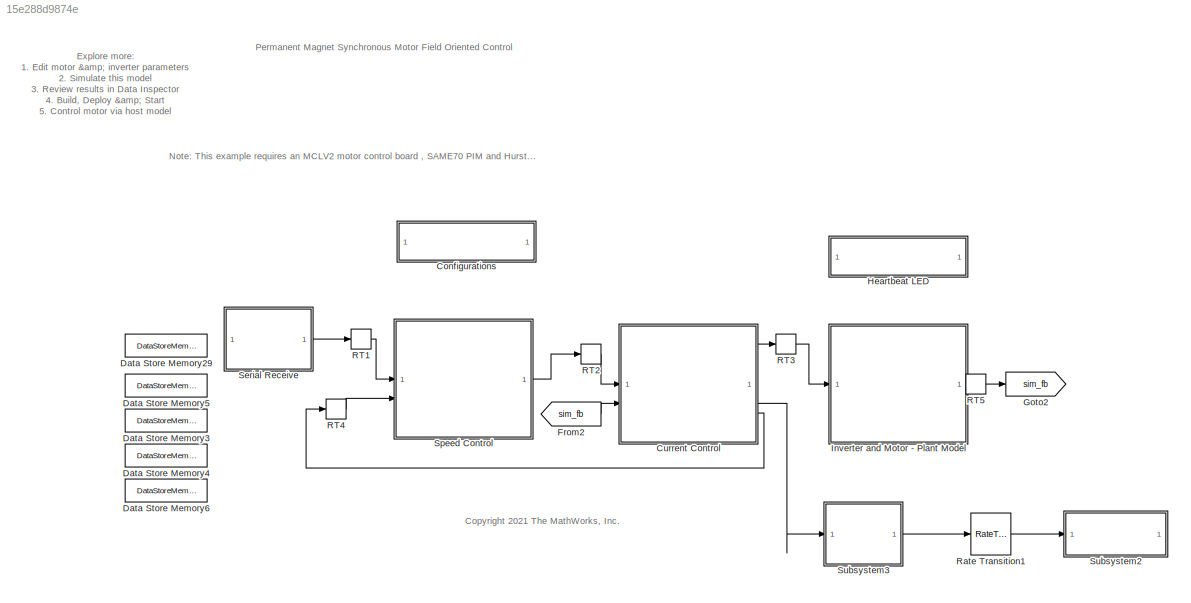
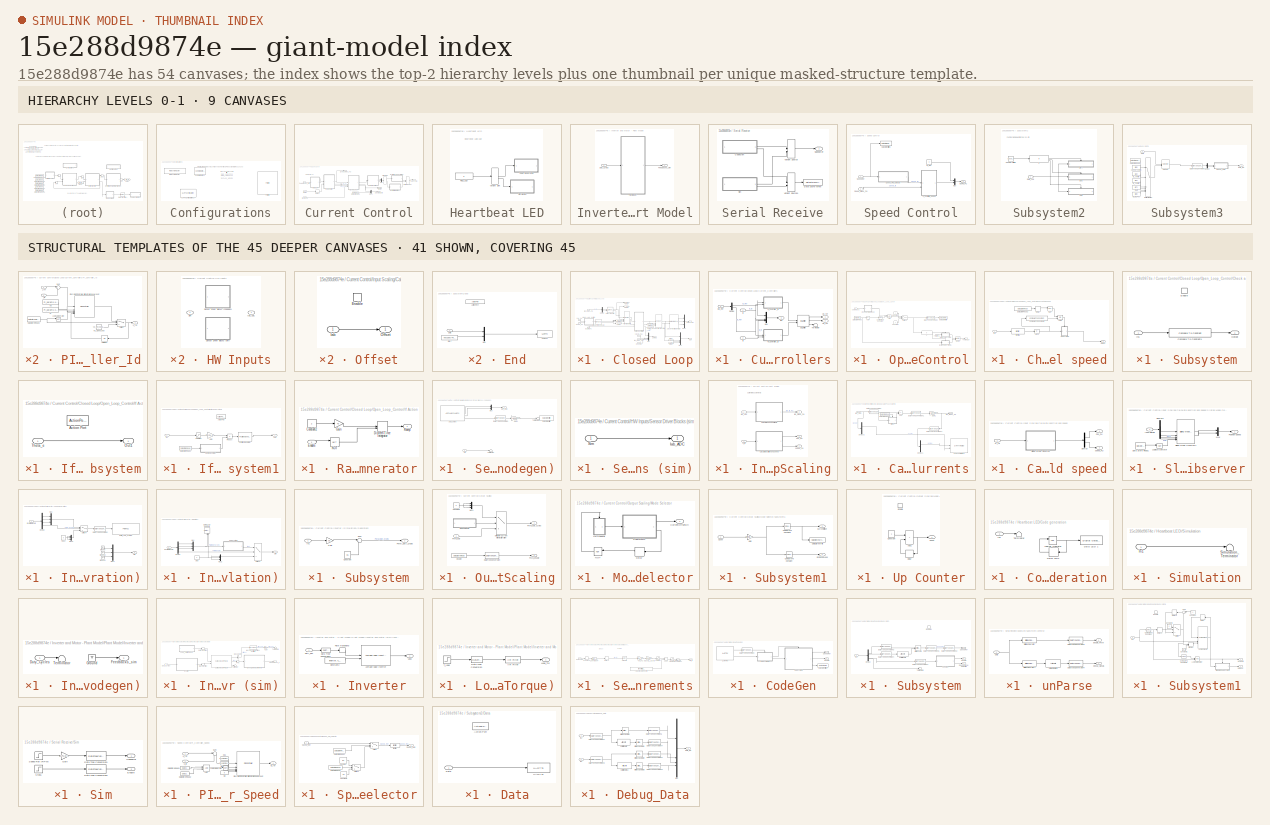
[diagram: thumbnail index - top-2 hierarchy levels (9 canvases) + 41 structural-template representatives of the remaining 45 canvases]
MODEL slx_15e288d9874e
KIND model
CONFIG AbsTol = auto
CONFIG EnableMultiTasking = on
CONFIG FixedStep = Ts
CONFIG InitFcn = mcb_microchip_pmsm_foc_sensorless_SAME54_data
CONFIG MaxStep = auto
CONFIG MinStep = auto
CONFIG RelTol = 1e-3
CONFIG SampleTimeConstraint = Unconstrained
CONFIG SolverName = FixedStepDiscrete
CONFIG StartTime = 0.0
CONFIG StopTime = 5
BLOCK [SubSystem] Configurations
BLOCK [Reference] Configurations/Compiler Options  REF=MCHP_Blockset/System Configuration/Compiler Options
  Priority = 1
  SourceBlock = MCHP_Blockset/System Configuration/Compiler Options
  SourceProductName = MPLAB Device Blocks for Simulink
BLOCK [Reference] Configurations/Microchip Master  REF=MCHP_Blockset/System Configuration/Microchip Master
  Priority = 1
  SourceBlock = MCHP_Blockset/System Configuration/Microchip Master
  SourceProductName = MPLAB Device Blocks for Simulink
BLOCK [Reference] Configurations/Port Info  REF=MCHP_Blockset/System Info/Port Info
  SourceBlock = MCHP_Blockset/System Info/Port Info
  SourceProductName = MPLAB Device Blocks for Simulink
BLOCK [Reference] Configurations/UART Configuration1  REF=MCHP_Blockset/BUS UART/UART Configuration
  SourceBlock = MCHP_Blockset/BUS UART/UART Configuration
  SourceProductName = MPLAB Device Blocks for Simulink
  SourceType = Configuration for UART peripheral
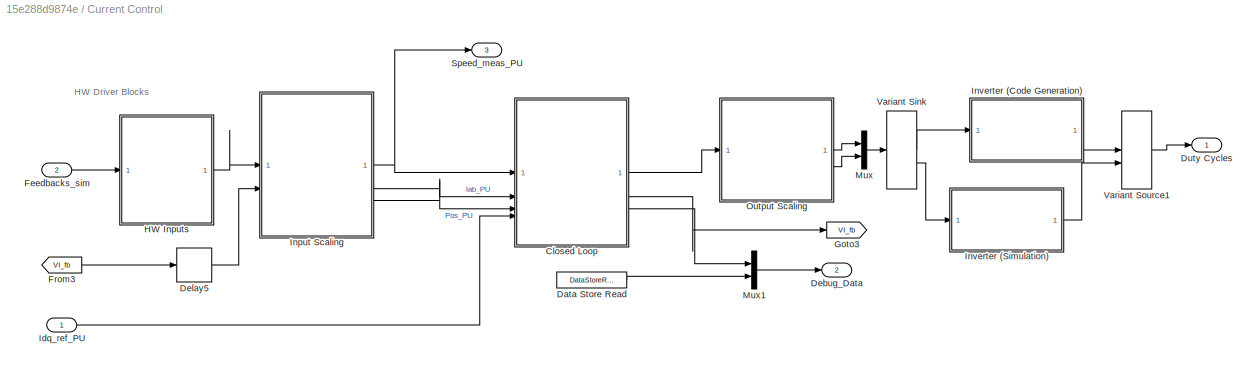
BLOCK [SubSystem] Current Control
  RTWMemSecFuncExecute = code_ramfuncs
  TreatAsAtomicUnit = on
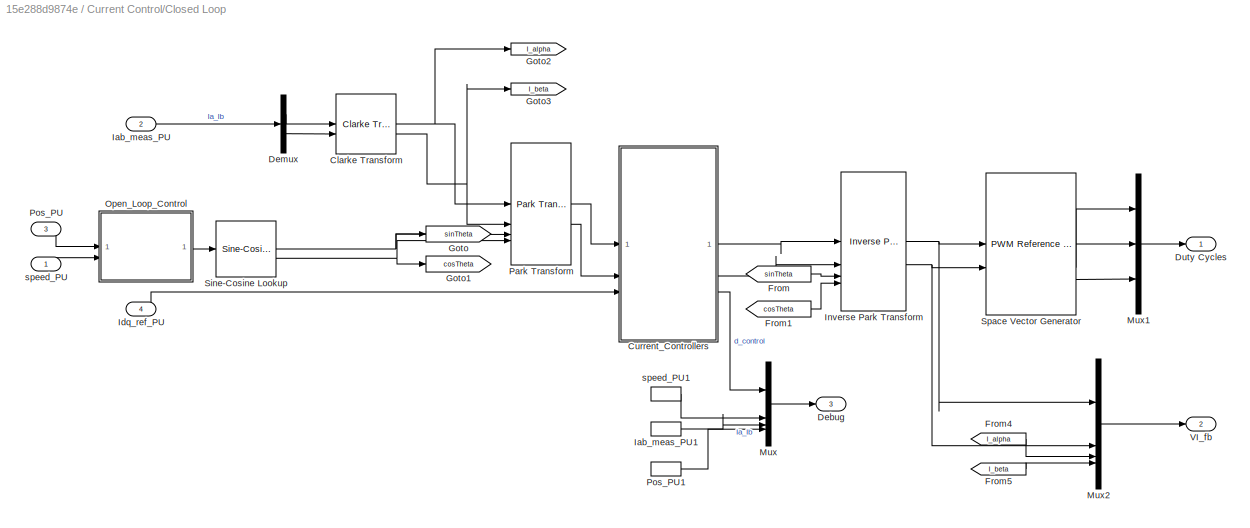
BLOCK [SubSystem] Current Control/Closed Loop
BLOCK [Reference] Current Control/Closed Loop/Clarke Transform  REF=mcbcontrolslib/Clarke Transform
  SourceBlock = mcbcontrolslib/Clarke Transform
  SourceType = Clarke Transform
BLOCK [SubSystem] Current Control/Closed Loop/Current_Controllers
BLOCK [Reference] Current Control/Closed Loop/Current_Controllers/DQ Limiter  REF=mcbcontrolslib/DQ Limiter
  SourceBlock = mcbcontrolslib/DQ Limiter
  SourceType = DQ Limiter
BLOCK [Demux] Current Control/Closed Loop/Current_Controllers/Demux
  Outputs = 2
BLOCK [Inport] Current Control/Closed Loop/Current_Controllers/Id
BLOCK [Outport] Current Control/Closed Loop/Current_Controllers/Idq
  Port = 3
  VectorParamsAs1DForOutWhenUnconnected = off
BLOCK [Inport] Current Control/Closed Loop/Current_Controllers/Idq_Ref
  Port = 3
BLOCK [Inport] Current Control/Closed Loop/Current_Controllers/Iq
  Port = 2
BLOCK [Mux] Current Control/Closed Loop/Current_Controllers/Mux
  DisplayOption = bar
BLOCK [SubSystem] Current Control/Closed Loop/Current_Controllers/PI_Controller_Id
  NameLocation = top
BLOCK [DataStoreRead] Current Control/Closed Loop/Current_Controllers/PI_Controller_Id/Data Store Read1
  DataStoreName = EnClosedLoop
  IndexOptions = Index vector (dialog)
  Indices = 1
  OutputSizes = 1
BLOCK [Reference] Current Control/Closed Loop/Current_Controllers/PI_Controller_Id/Discrete PI Controller with anti-windup & reset  REF=slpidlib/PID Controller
  LibrarySourceBlock = mcbcontrolslib/PI Controller
  SourceBlock = slpidlib/PID Controller
  SourceType = PID 1dof
BLOCK [Inport] Current Control/Closed Loop/Current_Controllers/PI_Controller_Id/I_fb
  Port = 2
BLOCK [Inport] Current Control/Closed Loop/Current_Controllers/PI_Controller_Id/I_ref
BLOCK [Constant] Current Control/Closed Loop/Current_Controllers/PI_Controller_Id/Ki
  OutDataTypeStr = dataType
  SampleTime = -1
  Value = PI_params.Ki_i*Ts
BLOCK [Constant] Current Control/Closed Loop/Current_Controllers/PI_Controller_Id/Kp
  NameLocation = top
  OutDataTypeStr = dataType
  SampleTime = -1
  Value = PI_params.Kp_i
BLOCK [Logic] Current Control/Closed Loop/Current_Controllers/PI_Controller_Id/Logical Operator
  AllPortsSameDT = off
  IconShape = distinctive
  Operator = NOT
  OutDataTypeStr = boolean
BLOCK [Sum] Current Control/Closed Loop/Current_Controllers/PI_Controller_Id/Sum
  AccumDataTypeStr = Inherit: Same as first input
  Inputs = |+-
  OutDataTypeStr = Inherit: Same as first input
BLOCK [Switch] Current Control/Closed Loop/Current_Controllers/PI_Controller_Id/Switch
  Criteria = u2 ~= 0
  InputSameDT = off
  RndMeth = Simplest
  SaturateOnIntegerOverflow = off
BLOCK [UnitDelay] Current Control/Closed Loop/Current_Controllers/PI_Controller_Id/Unit Delay
  HasFrameUpgradeWarning = on
  NameLocation = top
  SampleTime = -1
BLOCK [Outport] Current Control/Closed Loop/Current_Controllers/PI_Controller_Id/V_ref
  VectorParamsAs1DForOutWhenUnconnected = off
BLOCK [Constant] Current Control/Closed Loop/Current_Controllers/PI_Controller_Id/Vd_OpenLoop
  OutDataTypeStr = dataType
  SampleTime = -1
  Value = Vd_Ref_openLoop_PU
BLOCK [SubSystem] Current Control/Closed Loop/Current_Controllers/PI_Controller_Iq
  NameLocation = top
BLOCK [DataStoreRead] Current Control/Closed Loop/Current_Controllers/PI_Controller_Iq/Data Store Read1
  DataStoreName = EnClosedLoop
  IndexOptions = Index vector (dialog)
  Indices = 1
  OutputSizes = 1
BLOCK [Reference] Current Control/Closed Loop/Current_Controllers/PI_Controller_Iq/Discrete PI Controller with anti-windup & reset  REF=slpidlib/PID Controller
  LibrarySourceBlock = mcbcontrolslib/PI Controller
  SourceBlock = slpidlib/PID Controller
  SourceType = PID 1dof
BLOCK [Inport] Current Control/Closed Loop/Current_Controllers/PI_Controller_Iq/I_fb
  Port = 2
BLOCK [Inport] Current Control/Closed Loop/Current_Controllers/PI_Controller_Iq/I_ref
BLOCK [Constant] Current Control/Closed Loop/Current_Controllers/PI_Controller_Iq/Ki
  OutDataTypeStr = dataType
  SampleTime = -1
  Value = PI_params.Ki_i*Ts
BLOCK [Constant] Current Control/Closed Loop/Current_Controllers/PI_Controller_Iq/Kp
  NameLocation = top
  OutDataTypeStr = dataType
  SampleTime = -1
  Value = PI_params.Kp_i
BLOCK [Logic] Current Control/Closed Loop/Current_Controllers/PI_Controller_Iq/Logical Operator
  AllPortsSameDT = off
  IconShape = distinctive
  Operator = NOT
  OutDataTypeStr = boolean
BLOCK [Sum] Current Control/Closed Loop/Current_Controllers/PI_Controller_Iq/Sum
  AccumDataTypeStr = Inherit: Same as first input
  Inputs = |+-
  OutDataTypeStr = Inherit: Same as first input
BLOCK [Switch] Current Control/Closed Loop/Current_Controllers/PI_Controller_Iq/Switch
  Criteria = u2 ~= 0
  InputSameDT = off
  RndMeth = Simplest
  SaturateOnIntegerOverflow = off
BLOCK [UnitDelay] Current Control/Closed Loop/Current_Controllers/PI_Controller_Iq/Unit Delay
  HasFrameUpgradeWarning = on
  NameLocation = top
  SampleTime = -1
BLOCK [Outport] Current Control/Closed Loop/Current_Controllers/PI_Controller_Iq/V_ref
  VectorParamsAs1DForOutWhenUnconnected = off
BLOCK [Constant] Current Control/Closed Loop/Current_Controllers/PI_Controller_Iq/Vq_OpenLoop
  OutDataTypeStr = dataType
  SampleTime = -1
  Value = 0
BLOCK [Terminator] Current Control/Closed Loop/Current_Controllers/Terminator
BLOCK [Outport] Current Control/Closed Loop/Current_Controllers/Vd_ref
  NameLocation = top
  VectorParamsAs1DForOutWhenUnconnected = off
BLOCK [Outport] Current Control/Closed Loop/Current_Controllers/Vq_ref
  Port = 2
  VectorParamsAs1DForOutWhenUnconnected = off
BLOCK [Outport] Current Control/Closed Loop/Debug
  Port = 3
  VectorParamsAs1DForOutWhenUnconnected = off
BLOCK [Demux] Current Control/Closed Loop/Demux
  Outputs = 2
BLOCK [Outport] Current Control/Closed Loop/Duty Cycles
  VectorParamsAs1DForOutWhenUnconnected = off
BLOCK [From] Current Control/Closed Loop/From
  GotoTag = sinTheta
BLOCK [From] Current Control/Closed Loop/From1
  GotoTag = cosTheta
BLOCK [From] Current Control/Closed Loop/From4
  GotoTag = I_alpha
BLOCK [From] Current Control/Closed Loop/From5
  GotoTag = I_beta
BLOCK [Goto] Current Control/Closed Loop/Goto
  GotoTag = sinTheta
BLOCK [Goto] Current Control/Closed Loop/Goto1
  GotoTag = cosTheta
BLOCK [Goto] Current Control/Closed Loop/Goto2
  GotoTag = I_alpha
BLOCK [Goto] Current Control/Closed Loop/Goto3
  GotoTag = I_beta
BLOCK [Inport] Current Control/Closed Loop/Iab_meas_PU
  Port = 2
BLOCK [InportShadow] Current Control/Closed Loop/Iab_meas_PU1
  Port = 2
BLOCK [Inport] Current Control/Closed Loop/Idq_ref_PU
  Port = 4
BLOCK [Reference] Current Control/Closed Loop/Inverse Park Transform  REF=mcbcontrolslib/Inverse Park Transform
  SourceBlock = mcbcontrolslib/Inverse Park Transform
  SourceType = Inverse Park Transform
BLOCK [Mux] Current Control/Closed Loop/Mux
  DisplayOption = bar
BLOCK [Mux] Current Control/Closed Loop/Mux1
  DisplayOption = bar
  Inputs = 3
BLOCK [Mux] Current Control/Closed Loop/Mux2
  DisplayOption = bar
BLOCK [SubSystem] Current Control/Closed Loop/Open_Loop_Control
BLOCK [Logic] Current Control/Closed Loop/Open_Loop_Control/AND
  AllPortsSameDT = off
  IconShape = distinctive
  OutDataTypeStr = boolean
BLOCK [Abs] Current Control/Closed Loop/Open_Loop_Control/Abs
  SaturateOnIntegerOverflow = off
BLOCK [SubSystem] Current Control/Closed Loop/Open_Loop_Control/Check actual speed
BLOCK [Logic] Current Control/Closed Loop/Open_Loop_Control/Check actual speed/AND1
  AllPortsSameDT = off
  IconShape = distinctive
  Operator = OR
  OutDataTypeStr = boolean
BLOCK [Abs] Current Control/Closed Loop/Open_Loop_Control/Check actual speed/Abs1
  SaturateOnIntegerOverflow = off
BLOCK [Reference] Current Control/Closed Loop/Open_Loop_Control/Check actual speed/Compare To Constant1  REF=simulink/Logic and Bit
Operations/Compare
To Constant
  SourceBlock = simulink/Logic and Bit\nOperations/Compare\nTo Constant
  SourceType = Compare To Constant
BLOCK [DataStoreRead] Current Control/Closed Loop/Open_Loop_Control/Check actual speed/Data Store Read2
  DataStoreName = EnClosedLoop
  IndexOptions = Index vector (dialog)
  Indices = 1
  OutputSizes = 1
BLOCK [Delay] Current Control/Closed Loop/Open_Loop_Control/Check actual speed/Delay
  DelayLength = 1
  InputPortMap = u0
BLOCK [Reference] Current Control/Closed Loop/Open_Loop_Control/Check actual speed/IIR Filter1  REF=mcbcontrolslib/IIR Filter
  SourceBlock = mcbcontrolslib/IIR Filter
  SourceType = IIR Filter
BLOCK [Inport] Current Control/Closed Loop/Open_Loop_Control/Check actual speed/In1
BLOCK [Logic] Current Control/Closed Loop/Open_Loop_Control/Check actual speed/NOT
  AllPortsSameDT = off
  IconShape = distinctive
  Operator = NOT
  OutDataTypeStr = boolean
BLOCK [Outport] Current Control/Closed Loop/Open_Loop_Control/Check actual speed/Output
BLOCK [SubSystem] Current Control/Closed Loop/Open_Loop_Control/Check actual speed/Subsystem
BLOCK [Reference] Current Control/Closed Loop/Open_Loop_Control/Check actual speed/Subsystem/Compare To Constant1  REF=simulink/Logic and Bit
Operations/Compare
To Constant
  SourceBlock = simulink/Logic and Bit\nOperations/Compare\nTo Constant
  SourceType = Compare To Constant
BLOCK [EnablePort] Current Control/Closed Loop/Open_Loop_Control/Check actual speed/Subsystem/Enable
BLOCK [Inport] Current Control/Closed Loop/Open_Loop_Control/Check actual speed/Subsystem/In1
BLOCK [Outport] Current Control/Closed Loop/Open_Loop_Control/Check actual speed/Subsystem/Output
BLOCK [Reference] Current Control/Closed Loop/Open_Loop_Control/Compare To Constant  REF=simulink/Logic and Bit
Operations/Compare
To Constant
  SourceBlock = simulink/Logic and Bit\nOperations/Compare\nTo Constant
  SourceType = Compare To Constant
BLOCK [Constant] Current Control/Closed Loop/Open_Loop_Control/Constant
  OutDataTypeStr = uint16
BLOCK [Constant] Current Control/Closed Loop/Open_Loop_Control/Constant1
  OutDataTypeStr = uint16
  Value = 0
BLOCK [DataStoreRead] Current Control/Closed Loop/Open_Loop_Control/Data Store Read
  DataStoreName = Speed_ref
  IndexOptions = Index vector (dialog)
  Indices = 1
  OutputSizes = 1
BLOCK [DataStoreWrite] Current Control/Closed Loop/Open_Loop_Control/Data Store Write
  DataStoreName = EnClosedLoop
  IndexOptions = Index vector (dialog)
  Indices = 1
  OutputSizes = 1
BLOCK [DataTypeConversion] Current Control/Closed Loop/Open_Loop_Control/Data Type Conversion
  OutDataTypeStr = boolean
  RndMeth = Simplest
  SaturateOnIntegerOverflow = off
BLOCK [If] Current Control/Closed Loop/Open_Loop_Control/If
BLOCK [SubSystem] Current Control/Closed Loop/Open_Loop_Control/If Action Subsystem
  TreatAsAtomicUnit = on
BLOCK [ActionPort] Current Control/Closed Loop/Open_Loop_Control/If Action Subsystem/Action Port
  ActionPortLabel = if(u1 > 0)
BLOCK [Outport] Current Control/Closed Loop/Open_Loop_Control/If Action Subsystem/Out1
BLOCK [Inport] Current Control/Closed Loop/Open_Loop_Control/If Action Subsystem/Theta_e
BLOCK [SubSystem] Current Control/Closed Loop/Open_Loop_Control/If Action Subsystem1
  TreatAsAtomicUnit = on
BLOCK [ActionPort] Current Control/Closed Loop/Open_Loop_Control/If Action Subsystem1/Action Port
  ActionPortLabel = else
BLOCK [DataStoreRead] Current Control/Closed Loop/Open_Loop_Control/If Action Subsystem1/Data Store Read1
  DataStoreName = Enable
  IndexOptions = Index vector (dialog)
  Indices = 1
  OutputSizes = 1
BLOCK [Gain] Current Control/Closed Loop/Open_Loop_Control/If Action Subsystem1/Gain
  Gain = Ts*PU_System.N_base*pmsm.p/60
  OutDataTypeStr = Inherit: Same as input
  ParamDataTypeStr = Inherit: Same as input
BLOCK [Inport] Current Control/Closed Loop/Open_Loop_Control/If Action Subsystem1/In1
BLOCK [Outport] Current Control/Closed Loop/Open_Loop_Control/If Action Subsystem1/Out1
BLOCK [Reference] Current Control/Closed Loop/Open_Loop_Control/If Action Subsystem1/Position Generator  REF=mcbcontrolslib/Position Generator
  SourceBlock = mcbcontrolslib/Position Generator
  SourceType = Position Generator
BLOCK [Product] Current Control/Closed Loop/Open_Loop_Control/If Action Subsystem1/Product
BLOCK [SubSystem] Current Control/Closed Loop/Open_Loop_Control/If Action Subsystem1/Ramp Generator
BLOCK [Constant] Current Control/Closed Loop/Open_Loop_Control/If Action Subsystem1/Ramp Generator/Constant2
  OutDataTypeStr = dataType
  Value = 2
BLOCK [DiscreteIntegrator] Current Control/Closed Loop/Open_Loop_Control/If Action Subsystem1/Ramp Generator/Discrete-Time Integrator
  ExternalReset = sampled level
  ICPrevOutput = DiscIntNeverNeededParam
  ICPrevScaledInput = DiscIntNeverNeededParam
  IntegratorMethod = Accumulation: Forward Euler
  LimitOutput = on
  LowerSaturationLimit = -1
  OutDataTypeStr = dataType
  RndMeth = Simplest
  SampleTime = -1
  UpperSaturationLimit = 1
BLOCK [Inport] Current Control/Closed Loop/Open_Loop_Control/If Action Subsystem1/Ramp Generator/Enable
BLOCK [Gain] Current Control/Closed Loop/Open_Loop_Control/If Action Subsystem1/Ramp Generator/Gain
  Gain = Ts
  OutDataTypeStr = Inherit: Same as input
  RndMeth = Simplest
BLOCK [Logic] Current Control/Closed Loop/Open_Loop_Control/If Action Subsystem1/Ramp Generator/NOT
  AllPortsSameDT = off
  IconShape = distinctive
  Operator = NOT
  OutDataTypeStr = boolean
BLOCK [Outport] Current Control/Closed Loop/Open_Loop_Control/If Action Subsystem1/Ramp Generator/Ramp
BLOCK [Saturate] Current Control/Closed Loop/Open_Loop_Control/If Action Subsystem1/Saturation
  LowerLimit = -Vd_Ref_openLoop_PU
  UpperLimit = Vd_Ref_openLoop_PU
BLOCK [Merge] Current Control/Closed Loop/Open_Loop_Control/Merge
BLOCK [Switch] Current Control/Closed Loop/Open_Loop_Control/Switch2
  Criteria = u2 > Threshold
  InputSameDT = off
  SaturateOnIntegerOverflow = off
  Threshold = 0.5
BLOCK [Outport] Current Control/Closed Loop/Open_Loop_Control/Theta_Out
BLOCK [Inport] Current Control/Closed Loop/Open_Loop_Control/Theta_e
BLOCK [Inport] Current Control/Closed Loop/Open_Loop_Control/speed_PU
  Port = 2
BLOCK [Reference] Current Control/Closed Loop/Park Transform  REF=mcbcontrolslib/Park Transform
  SourceBlock = mcbcontrolslib/Park Transform
  SourceType = Park Transform
BLOCK [Inport] Current Control/Closed Loop/Pos_PU
  Port = 3
BLOCK [InportShadow] Current Control/Closed Loop/Pos_PU1
  Port = 3
BLOCK [Reference] Current Control/Closed Loop/Sine-Cosine Lookup  REF=mcbcontrolslib/Sine-Cosine Lookup
  SourceBlock = mcbcontrolslib/Sine-Cosine Lookup
  SourceType = Sine-Cosine Lookup
BLOCK [Reference] Current Control/Closed Loop/Space Vector Generator  REF=mcbcontrolslib/PWM Reference Generator
  SourceBlock = mcbcontrolslib/PWM Reference Generator
  SourceType = PWM Modulation
BLOCK [Outport] Current Control/Closed Loop/VI_fb
  Port = 2
  VectorParamsAs1DForOutWhenUnconnected = off
BLOCK [Inport] Current Control/Closed Loop/speed_PU
BLOCK [InportShadow] Current Control/Closed Loop/speed_PU1
BLOCK [DataStoreRead] Current Control/Data Store Read
  DataStoreElements = Speed_ref
  DataStoreName = Speed_ref
  IndexOptions = Index vector (dialog)
  Indices = 1
  OutputSizes = 1
BLOCK [Outport] Current Control/Debug_Data
  Port = 2
BLOCK [Delay] Current Control/Delay5
  DelayLength = 1
  InputPortMap = u0
  SampleTime = Ts
BLOCK [Outport] Current Control/Duty Cycles
  InitialOutput = 0
  VectorParamsAs1DForOutWhenUnconnected = off
BLOCK [Inport] Current Control/Feedbacks_sim
  Port = 2
BLOCK [From] Current Control/From3
  GotoTag = VI_fb
BLOCK [Goto] Current Control/Goto3
  GotoTag = VI_fb
BLOCK [SubSystem] Current Control/HW Inputs
  Variant = on
  VariantControlMode = sim codegen switching
BLOCK [Outport] Current Control/HW Inputs/Iab_ADC
BLOCK [SubSystem] Current Control/HW Inputs/Sensor Driver Blocks (codegen)
  VariantControl = (codegen)
BLOCK [Reference] Current Control/HW Inputs/Sensor Driver Blocks (codegen)/ADC SAMx5  REF=MCHP_Blockset/Analog IO/ADC SAMx5 SAMC2x
  SourceBlock = MCHP_Blockset/Analog IO/ADC SAMx5 SAMC2x
  SourceProductName = MPLAB Device Blocks for Simulink
  SourceType = ADC for SAMD5/E5 & SAMC2x
  UserDataPersistent = on
BLOCK [DataStoreWrite] Current Control/HW Inputs/Sensor Driver Blocks (codegen)/Data Store Write
  Commented = on
  DataStoreName = Speed_ref
  IndexOptions = Index vector (dialog)
  Indices = 1
  OutputSizes = 1
BLOCK [DataTypeConversion] Current Control/HW Inputs/Sensor Driver Blocks (codegen)/Data Type Conversion
  OutDataTypeStr = single
  RndMeth = Simplest
  SaturateOnIntegerOverflow = off
BLOCK [Gain] Current Control/HW Inputs/Sensor Driver Blocks (codegen)/Gain1
  Gain = 1/4095
  OutDataTypeStr = Inherit: Same as input
  ParamDataTypeStr = Inherit: Same as input
BLOCK [Outport] Current Control/HW Inputs/Sensor Driver Blocks (codegen)/Iab_ADC
BLOCK [Mux] Current Control/HW Inputs/Sensor Driver Blocks (codegen)/Mux
  DisplayOption = bar
  Inputs = 2
BLOCK [Inport] Current Control/HW Inputs/Sensor Driver Blocks (codegen)/Sim
BLOCK [Terminator] Current Control/HW Inputs/Sensor Driver Blocks (codegen)/Terminator
BLOCK [Terminator] Current Control/HW Inputs/Sensor Driver Blocks (codegen)/Terminator1
BLOCK [SubSystem] Current Control/HW Inputs/Sensor Driver Blocks (sim)
  VariantControl = (sim)
BLOCK [Outport] Current Control/HW Inputs/Sensor Driver Blocks (sim)/Iab_ADC
BLOCK [Inport] Current Control/HW Inputs/Sensor Driver Blocks (sim)/Sim
BLOCK [Inport] Current Control/HW Inputs/Sim
BLOCK [Inport] Current Control/Idq_ref_PU
BLOCK [SubSystem] Current Control/Input Scaling
BLOCK [SubSystem] Current Control/Input Scaling/Calculate Phase Currents
BLOCK [Sum] Current Control/Input Scaling/Calculate Phase Currents/Add
  IconShape = rectangular
  Inputs = +-
BLOCK [DataStoreRead] Current Control/Input Scaling/Calculate Phase Currents/Data Store Read2
  DataStoreName = EnCurOffset
  IndexOptions = Index vector (dialog)
  Indices = 1
  OutputSizes = 1
BLOCK [DataTypeConversion] Current Control/Input Scaling/Calculate Phase Currents/Data Type Conversion
  ConvertRealWorld = Stored Integer (SI)
  OutDataTypeStr = int32
  RndMeth = Floor
  SaturateOnIntegerOverflow = off
BLOCK [DataTypeConversion] Current Control/Input Scaling/Calculate Phase Currents/Data Type Conversion1
  OutDataTypeStr = dataType
  RndMeth = Floor
  SaturateOnIntegerOverflow = off
BLOCK [DataTypeConversion] Current Control/Input Scaling/Calculate Phase Currents/Data Type Conversion2
  Commented = on
  OutDataTypeStr = uint16
  RndMeth = Floor
  SaturateOnIntegerOverflow = off
BLOCK [Demux] Current Control/Input Scaling/Calculate Phase Currents/Demux1
  Commented = on
  Outputs = 2
BLOCK [Demux] Current Control/Input Scaling/Calculate Phase Currents/Demux2
  Commented = on
  Outputs = 2
BLOCK [Gain] Current Control/Input Scaling/Calculate Phase Currents/Gain1
  Gain = 1/2048
  OutDataTypeStr = Inherit: Same as input
  ParamDataTypeStr = Inherit: Same as input
BLOCK [Inport] Current Control/Input Scaling/Calculate Phase Currents/Iab_ADC
BLOCK [Outport] Current Control/Input Scaling/Calculate Phase Currents/Iab_meas_PU
  VectorParamsAs1DForOutWhenUnconnected = off
BLOCK [SubSystem] Current Control/Input Scaling/Calculate Phase Currents/Offset
BLOCK [EnablePort] Current Control/Input Scaling/Calculate Phase Currents/Offset/Enable
BLOCK [Inport] Current Control/Input Scaling/Calculate Phase Currents/Offset/Iab
BLOCK [Outport] Current Control/Input Scaling/Calculate Phase Currents/Offset/Offset
BLOCK [Reference] Current Control/Input Scaling/Calculate Phase Currents/UART Tx-Matlab4  REF=MCHP_Blockset/BUS UART/UART Tx-Matlab
  Commented = on
  SourceBlock = MCHP_Blockset/BUS UART/UART Tx-Matlab
  SourceProductName = MPLAB Device Blocks for Simulink
  SourceType = Higl Level UART protocol
BLOCK [SubSystem] Current Control/Input Scaling/Calculate position and speed
BLOCK [Demux] Current Control/Input Scaling/Calculate position and speed/Demux
  Outputs = 2
BLOCK [Outport] Current Control/Input Scaling/Calculate position and speed/Pos_PU
BLOCK [SubSystem] Current Control/Input Scaling/Calculate position and speed/Sliding Mode Observer
BLOCK [DataStoreRead] Current Control/Input Scaling/Calculate position and speed/Sliding Mode Observer/Data Store Read1
  DataStoreName = Enable
  IndexOptions = Index vector (dialog)
  Indices = 1
  OutputSizes = 1
BLOCK [Demux] Current Control/Input Scaling/Calculate position and speed/Sliding Mode Observer/Demux1
BLOCK [Inport] Current Control/Input Scaling/Calculate position and speed/Sliding Mode Observer/InputSignals
BLOCK [Logic] Current Control/Input Scaling/Calculate position and speed/Sliding Mode Observer/Logical Operator
  AllPortsSameDT = off
  IconShape = distinctive
  Operator = NOT
  OutDataTypeStr = boolean
BLOCK [Mux] Current Control/Input Scaling/Calculate position and speed/Sliding Mode Observer/Mux
  DisplayOption = bar
  Inputs = 2
BLOCK [Outport] Current Control/Input Scaling/Calculate position and speed/Sliding Mode Observer/Position//Speed
BLOCK [Reference] Current Control/Input Scaling/Calculate position and speed/Sliding Mode Observer/Sliding Mode Observer1  REF=mcbpositiondecoderlib/Archive/Sliding Mode Observer
  SourceBlock = mcbpositiondecoderlib/Archive/Sliding Mode Observer
  SourceType = Sliding Mode Observer
BLOCK [Inport] Current Control/Input Scaling/Calculate position and speed/VI_fb
BLOCK [Outport] Current Control/Input Scaling/Calculate position and speed/speed_PU
  Port = 2
BLOCK [Inport] Current Control/Input Scaling/Iab_ADC
BLOCK [Outport] Current Control/Input Scaling/Iab_meas_PU
  Port = 2
BLOCK [Outport] Current Control/Input Scaling/Pos_PU
  Port = 3
BLOCK [Inport] Current Control/Input Scaling/VI_fb
  Port = 2
BLOCK [Outport] Current Control/Input Scaling/speed_PU
BLOCK [SubSystem] Current Control/Inverter (Code Generation)
BLOCK [DataTypeConversion] Current Control/Inverter (Code Generation)/Data Type Conversion
  OutDataTypeStr = single
  RndMeth = Floor
  SaturateOnIntegerOverflow = off
BLOCK [Demux] Current Control/Inverter (Code Generation)/Demux
BLOCK [Ground] Current Control/Inverter (Code Generation)/Ground
BLOCK [Ground] Current Control/Inverter (Code Generation)/Ground1
BLOCK [Ground] Current Control/Inverter (Code Generation)/Ground2
BLOCK [Inport] Current Control/Inverter (Code Generation)/Inverter Signals
BLOCK [Mux] Current Control/Inverter (Code Generation)/Mux
  DisplayOption = bar
  Inputs = 3
BLOCK [Mux] Current Control/Inverter (Code Generation)/Mux1
  DisplayOption = bar
  Inputs = 3
BLOCK [Mux] Current Control/Inverter (Code Generation)/Mux3
  DisplayOption = bar
  Inputs = 3
BLOCK [Reference] Current Control/Inverter (Code Generation)/PWM_TCC_SAMx5  REF=MCHP_Blockset/PWM IO/PWM TCC
  SourceBlock = MCHP_Blockset/PWM IO/PWM TCC
  SourceProductName = MPLAB Device Blocks for Simulink
  SourceType = PWM - TCC
  UserDataPersistent = on
BLOCK [Outport] Current Control/Inverter (Code Generation)/Sim
  VectorParamsAs1DForOutWhenUnconnected = off
BLOCK [Switch] Current Control/Inverter (Code Generation)/Switch4
  InputSameDT = off
  RndMeth = Simplest
  SaturateOnIntegerOverflow = off
  Threshold = 0.5
BLOCK [Constant] Current Control/Inverter (Code Generation)/stop1
  OutDataTypeStr = dataType
  Value = 0
BLOCK [SubSystem] Current Control/Inverter (Simulation)
BLOCK [DataTypeDuplicate] Current Control/Inverter (Simulation)/Data Type Duplicate
BLOCK [Demux] Current Control/Inverter (Simulation)/Demux
BLOCK [Inport] Current Control/Inverter (Simulation)/Inverter Signals
BLOCK [Mux] Current Control/Inverter (Simulation)/Mux
  DisplayOption = bar
  Inputs = 3
BLOCK [Mux] Current Control/Inverter (Simulation)/Mux2
  DisplayOption = bar
  Inputs = 3
BLOCK [Outport] Current Control/Inverter (Simulation)/Sim
  VectorParamsAs1DForOutWhenUnconnected = off
BLOCK [SubSystem] Current Control/Inverter (Simulation)/Subsystem
BLOCK [Constant] Current Control/Inverter (Simulation)/Subsystem/Constant
  OutDataTypeStr = dataType
  Value = 0.5
BLOCK [Gain] Current Control/Inverter (Simulation)/Subsystem/Gain
  Gain = 0.5
  OutDataTypeStr = Inherit: Same as input
BLOCK [Inport] Current Control/Inverter (Simulation)/Subsystem/In1
BLOCK [Outport] Current Control/Inverter (Simulation)/Subsystem/PWM_Duty_Cycles
BLOCK [Sum] Current Control/Inverter (Simulation)/Subsystem/Sum
  AccumDataTypeStr = Inherit: Same as first input
  Inputs = |++
BLOCK [Switch] Current Control/Inverter (Simulation)/Switch1
  InputSameDT = off
  RndMeth = Simplest
  SaturateOnIntegerOverflow = off
  Threshold = 0.5
BLOCK [Constant] Current Control/Inverter (Simulation)/stop
  OutDataTypeStr = Inherit: Inherit via back propagation
  Value = 0
BLOCK [Mux] Current Control/Mux
  DisplayOption = bar
  Inputs = 2
BLOCK [Mux] Current Control/Mux1
  DisplayOption = bar
  Inputs = 2
BLOCK [SubSystem] Current Control/Output Scaling
BLOCK [Constant] Current Control/Output Scaling/Constant2
  OutDataTypeStr = Inherit: Inherit via back propagation
  Value = 0
BLOCK [DataTypeConversion] Current Control/Output Scaling/Data Type Conversion
  OutDataTypeStr = dataType
  RndMeth = Floor
  SaturateOnIntegerOverflow = off
BLOCK [DataStoreRead] Current Control/Output Scaling/Enable
  DataStoreName = Enable
  IndexOptions = Index vector (dialog)
  Indices = 1
  OutputSizes = 1
BLOCK [SubSystem] Current Control/Output Scaling/Mode Selector
BLOCK [Outport] Current Control/Output Scaling/Mode Selector/CurrentOffsetEn
BLOCK [Delay] Current Control/Output Scaling/Mode Selector/Delay
  DelayLength = 1
  InputPortMap = u0
BLOCK [Logic] Current Control/Output Scaling/Mode Selector/NOT
  AllPortsSameDT = off
  IconShape = distinctive
  Operator = NOT
  OutDataTypeStr = boolean
BLOCK [SubSystem] Current Control/Output Scaling/Mode Selector/Subsystem1
BLOCK [Reference] Current Control/Output Scaling/Mode Selector/Subsystem1/Compare To Constant  REF=simulink/Logic and Bit
Operations/Compare
To Constant
  SourceBlock = simulink/Logic and Bit\nOperations/Compare\nTo Constant
  SourceType = Compare To Constant
BLOCK [Reference] Current Control/Output Scaling/Mode Selector/Subsystem1/Compare To Constant1  REF=simulink/Logic and Bit
Operations/Compare
To Constant
  SourceBlock = simulink/Logic and Bit\nOperations/Compare\nTo Constant
  SourceType = Compare To Constant
BLOCK [Inport] Current Control/Output Scaling/Mode Selector/Subsystem1/Count
BLOCK [Outport] Current Control/Output Scaling/Mode Selector/Subsystem1/Current Offset
BLOCK [DataStoreWrite] Current Control/Output Scaling/Mode Selector/Subsystem1/Data Store Write
  DataStoreName = EnCurOffset
  IndexOptions = Index vector (dialog)
  Indices = 1
  OutputSizes = 1
BLOCK [Outport] Current Control/Output Scaling/Mode Selector/Subsystem1/EnClosedLoop
  Port = 2
BLOCK [Gain] Current Control/Output Scaling/Mode Selector/Subsystem1/Gain
  Gain = 1/(PWM_frequency)
  OutDataTypeStr = dataType
  RndMeth = Simplest
BLOCK [SubSystem] Current Control/Output Scaling/Mode Selector/Up Counter
BLOCK [Sum] Current Control/Output Scaling/Mode Selector/Up Counter/Add1
  IconShape = rectangular
  SaturateOnIntegerOverflow = on
BLOCK [Constant] Current Control/Output Scaling/Mode Selector/Up Counter/Constant
  OutDataTypeStr = uint32
BLOCK [Outport] Current Control/Output Scaling/Mode Selector/Up Counter/Count
  InitialOutput = 0
BLOCK [Delay] Current Control/Output Scaling/Mode Selector/Up Counter/Delay
  DelayLength = 1
  InputPortMap = u0
BLOCK [EnablePort] Current Control/Output Scaling/Mode Selector/Up Counter/Enable
BLOCK [Mux] Current Control/Output Scaling/Mux1
  DisplayOption = bar
  Inputs = 3
BLOCK [Inport] Current Control/Output Scaling/PWM_Duty
BLOCK [Outport] Current Control/Output Scaling/PWM_Duty_Cycles
BLOCK [Outport] Current Control/Output Scaling/PWM_Enable
  Port = 2
BLOCK [Switch] Current Control/Output Scaling/Switch for Current offset calibration
  Criteria = u2 ~= 0
  InputSameDT = off
  SaturateOnIntegerOverflow = off
  Threshold = 250
BLOCK [Outport] Current Control/Speed_meas_PU
  InitialOutput = 0
  Port = 3
  VectorParamsAs1DForOutWhenUnconnected = off
BLOCK [VariantSink] Current Control/Variant Sink
  VariantControlMode = sim codegen switching
BLOCK [VariantSource] Current Control/Variant Source1
  VariantControlMode = sim codegen switching
BLOCK [DataStoreMemory] Data Store Memory29
  DataStoreName = Enable
  InitialValue = 1
  OutDataTypeStr = boolean
  ReadBeforeWriteMsg = warning
  ShowAdditionalParam = off
  WriteAfterReadMsg = warning
  WriteAfterWriteMsg = warning
BLOCK [DataStoreMemory] Data Store Memory3
  DataStoreName = Speed_ref
  InitialValue = 0.1
  OutDataTypeStr = dataType
  ReadBeforeWriteMsg = warning
  ShowAdditionalParam = off
  WriteAfterReadMsg = warning
  WriteAfterWriteMsg = warning
BLOCK [DataStoreMemory] Data Store Memory4
  DataStoreName = EnCurOffset
  OutDataTypeStr = boolean
  ReadBeforeWriteMsg = warning
  ShowAdditionalParam = off
  WriteAfterReadMsg = warning
  WriteAfterWriteMsg = warning
BLOCK [DataStoreMemory] Data Store Memory5
  DataStoreName = EnClosedLoop
  OutDataTypeStr = boolean
  ReadBeforeWriteMsg = warning
  ShowAdditionalParam = off
  WriteAfterReadMsg = warning
  WriteAfterWriteMsg = warning
BLOCK [DataStoreMemory] Data Store Memory6
  DataStoreName = Debug_signals
  InitialValue = 5
  OutDataTypeStr = uint16
  ReadBeforeWriteMsg = warning
  ShowAdditionalParam = off
  WriteAfterReadMsg = warning
  WriteAfterWriteMsg = warning
BLOCK [From] From2
  GotoTag = sim_fb
BLOCK [Goto] Goto2
  GotoTag = sim_fb
BLOCK [SubSystem] Heartbeat LED
  TreatAsAtomicUnit = on
BLOCK [SubSystem] Heartbeat LED/Code generation
BLOCK [Reference] Heartbeat LED/Code generation/DBG LED 1  REF=MCHP_Blockset/Digital IO/Digital Output
Write
  SourceBlock = MCHP_Blockset/Digital IO/Digital Output\nWrite
  SourceProductName = MPLAB Device Blocks for Simulink
  SourceType = Output driver for Digital Output Pins
BLOCK [Delay] Heartbeat LED/Code generation/Delay 10Hz
  DelayLength = 1
  InitialCondition = 0
  InputPortMap = u0
  SampleTime = 0.25
BLOCK [Inport] Heartbeat LED/Code generation/In1
BLOCK [Logic] Heartbeat LED/Code generation/Logical Operator
  AllPortsSameDT = off
  NameLocation = top
  Operator = NOT
  OutDataTypeStr = boolean
BLOCK [Terminator] Heartbeat LED/Code generation/Terminator
BLOCK [Constant] Heartbeat LED/RED_LED
  OutDataTypeStr = uint16
  SampleTime = 0.1
BLOCK [SubSystem] Heartbeat LED/Simulation
BLOCK [Inport] Heartbeat LED/Simulation/In1
BLOCK [Terminator] Heartbeat LED/Simulation/Simulation_Terminator
BLOCK [VariantSink] Heartbeat LED/Variant Sink
BLOCK [SubSystem] Inverter and Motor - Plant Model
  RTWSystemCode = Reusable function
BLOCK [Inport] Inverter and Motor - Plant Model/Duty_Cycles
BLOCK [Outport] Inverter and Motor - Plant Model/Feedbacks_sim
  VectorParamsAs1DForOutWhenUnconnected = off
BLOCK [SubSystem] Inverter and Motor - Plant Model/Plant Model
  PropagateVariantConditions = on
  Variant = on
  VariantControl = Variant1
  VariantControlMode = sim codegen switching
BLOCK [Inport] Inverter and Motor - Plant Model/Plant Model/Duty_Cycles
BLOCK [Outport] Inverter and Motor - Plant Model/Plant Model/Feedbacks_sim
  VectorParamsAs1DForOutWhenUnconnected = off
BLOCK [SubSystem] Inverter and Motor - Plant Model/Plant Model/Inverter and Motor (codegen)
  VariantControl = (codegen)
BLOCK [Inport] Inverter and Motor - Plant Model/Plant Model/Inverter and Motor (codegen)/Duty_Cycles
BLOCK [Outport] Inverter and Motor - Plant Model/Plant Model/Inverter and Motor (codegen)/Feedbacks_sim
  VectorParamsAs1DForOutWhenUnconnected = off
BLOCK [Ground] Inverter and Motor - Plant Model/Plant Model/Inverter and Motor (codegen)/Ground
BLOCK [Terminator] Inverter and Motor - Plant Model/Plant Model/Inverter and Motor (codegen)/Terminator
BLOCK [SubSystem] Inverter and Motor - Plant Model/Plant Model/Inverter and Motor (sim)
  VariantControl = (sim)
BLOCK [BusSelector] Inverter and Motor - Plant Model/Plant Model/Inverter and Motor (sim)/Bus Selector
  OutputSignals = MtrPos
BLOCK [Inport] Inverter and Motor - Plant Model/Plant Model/Inverter and Motor (sim)/Duty_Cycles
BLOCK [Outport] Inverter and Motor - Plant Model/Plant Model/Inverter and Motor (sim)/Feedbacks_sim
  VectorParamsAs1DForOutWhenUnconnected = off
BLOCK [Gain] Inverter and Motor - Plant Model/Plant Model/Inverter and Motor (sim)/Gain
  Gain = 1/(2*pi)
  OutDataTypeStr = Inherit: Same as input
BLOCK [SubSystem] Inverter and Motor - Plant Model/Plant Model/Inverter and Motor (sim)/Inverter
BLOCK [Reference] Inverter and Motor - Plant Model/Plant Model/Inverter and Motor (sim)/Inverter/Average-Value Inverter  REF=mcbplantlib/Average-Value Inverter
  SourceBlock = mcbplantlib/Average-Value Inverter
  SourceType = Average Value Inverter
BLOCK [Constant] Inverter and Motor - Plant Model/Plant Model/Inverter and Motor (sim)/Inverter/Constant2
  OutDataTypeStr = single
  SampleTime = -1
  Value = inverter.V_dc
BLOCK [DataTypeConversion] Inverter and Motor - Plant Model/Plant Model/Inverter and Motor (sim)/Inverter/Data Type Conversion1
  OutDataTypeStr = single
  RndMeth = Simplest
  SaturateOnIntegerOverflow = off
BLOCK [Inport] Inverter and Motor - Plant Model/Plant Model/Inverter and Motor (sim)/Inverter/Duty_abc
BLOCK [RateTransition] Inverter and Motor - Plant Model/Plant Model/Inverter and Motor (sim)/Inverter/Rate Transition3
  Deterministic = off
  OutPortSampleTime = Ts_inverter
BLOCK [Outport] Inverter and Motor - Plant Model/Plant Model/Inverter and Motor (sim)/Inverter/Vabc
  VectorParamsAs1DForOutWhenUnconnected = off
BLOCK [SubSystem] Inverter and Motor - Plant Model/Plant Model/Inverter and Motor (sim)/Load_Profile (Torque)
BLOCK [DataTypeConversion] Inverter and Motor - Plant Model/Plant Model/Inverter and Motor (sim)/Load_Profile (Torque)/Data Type Conversion
  OutDataTypeStr = single
  RndMeth = Floor
  SaturateOnIntegerOverflow = off
BLOCK [Reference] Inverter and Motor - Plant Model/Plant Model/Inverter and Motor (sim)/Load_Profile (Torque)/IIR Filter  REF=mcbcontrolslib/IIR Filter
  SourceBlock = mcbcontrolslib/IIR Filter
  SourceType = IIR Filter
BLOCK [Outport] Inverter and Motor - Plant Model/Plant Model/Inverter and Motor (sim)/Load_Profile (Torque)/Load_Trq
  VectorParamsAs1DForOutWhenUnconnected = off
BLOCK [Step] Inverter and Motor - Plant Model/Plant Model/Inverter and Motor (sim)/Load_Profile (Torque)/T_load
  After = 0.05*pmsm.T_rated
  Before = 0*pmsm.T_rated
  SampleTime = Ts_simulink
  Time = 3
BLOCK [Reference] Inverter and Motor - Plant Model/Plant Model/Inverter and Motor (sim)/Mechanical to Electrical Position  REF=mcbpositiondecoderlib/Mechanical to Electrical Position
  SourceBlock = mcbpositiondecoderlib/Mechanical to Electrical Position
  SourceType = Mechanical to Electrical Position
BLOCK [RateTransition] Inverter and Motor - Plant Model/Plant Model/Inverter and Motor (sim)/RT1
  Deterministic = off
  OutPortSampleTime = Ts_simulink
BLOCK [RateTransition] Inverter and Motor - Plant Model/Plant Model/Inverter and Motor (sim)/Rate Transition
  Deterministic = off
  OutPortSampleTime = Ts_motor
BLOCK [RateTransition] Inverter and Motor - Plant Model/Plant Model/Inverter and Motor (sim)/Rate Transition1
  Deterministic = off
  OutPortSampleTime = Ts_motor
BLOCK [SubSystem] Inverter and Motor - Plant Model/Plant Model/Inverter and Motor (sim)/Sensor_Measurements
BLOCK [Sum] Inverter and Motor - Plant Model/Plant Model/Inverter and Motor (sim)/Sensor_Measurements/Add4
  IconShape = rectangular
  OutDataTypeStr = uint16
BLOCK [DataTypeConversion] Inverter and Motor - Plant Model/Plant Model/Inverter and Motor (sim)/Sensor_Measurements/Data Type Conversion1
  OutDataTypeStr = uint16
  RndMeth = Floor
  SaturateOnIntegerOverflow = off
BLOCK [DataTypeConversion] Inverter and Motor - Plant Model/Plant Model/Inverter and Motor (sim)/Sensor_Measurements/Data Type Conversion4
  OutDataTypeStr = single
  RndMeth = Simplest
  SaturateOnIntegerOverflow = off
BLOCK [Delay] Inverter and Motor - Plant Model/Plant Model/Inverter and Motor (sim)/Sensor_Measurements/Delay1
  DelayLength = PI_params.delay_Currents
  InputPortMap = u0
BLOCK [Gain] Inverter and Motor - Plant Model/Plant Model/Inverter and Motor (sim)/Sensor_Measurements/Get_ADC_Counts
  Gain = 2048
  OutDataTypeStr = Inherit: Same as input
  RndMeth = Simplest
BLOCK [Gain] Inverter and Motor - Plant Model/Plant Model/Inverter and Motor (sim)/Sensor_Measurements/Get_PU
  Gain = 1/PU_System.I_base
  RndMeth = Simplest
BLOCK [Inport] Inverter and Motor - Plant Model/Plant Model/Inverter and Motor (sim)/Sensor_Measurements/PhaseCurr
BLOCK [Saturate] Inverter and Motor - Plant Model/Plant Model/Inverter and Motor (sim)/Sensor_Measurements/Saturation
  LowerLimit = -2048
  UpperLimit = 2048
BLOCK [Saturate] Inverter and Motor - Plant Model/Plant Model/Inverter and Motor (sim)/Sensor_Measurements/Saturation1
  LowerLimit = 0
  UpperLimit = 4095
BLOCK [Selector] Inverter and Motor - Plant Model/Plant Model/Inverter and Motor (sim)/Sensor_Measurements/Selector
  IndexOptions = Index vector (dialog)
  Indices = [1 2]
  InputPortWidth = 3
  OutputSizes = 1
BLOCK [Outport] Inverter and Motor - Plant Model/Plant Model/Inverter and Motor (sim)/Sensor_Measurements/Sim_fb
  VectorParamsAs1DForOutWhenUnconnected = off
BLOCK [UnaryMinus] Inverter and Motor - Plant Model/Plant Model/Inverter and Motor (sim)/Sensor_Measurements/Unary Minus
  Commented = through
BLOCK [Constant] Inverter and Motor - Plant Model/Plant Model/Inverter and Motor (sim)/Sensor_Measurements/~1.65V in ADC counts
  OutDataTypeStr = uint16
  SampleTime = -1
  Value = [inverter.CtSensAOffset inverter.CtSensBOffset]
BLOCK [Reference] Inverter and Motor - Plant Model/Plant Model/Inverter and Motor (sim)/Surface Mount PMSM  REF=autolibpmsmexterior/Surface Mount PMSM
  LibrarySourceBlock = mcblib/Electrical Systems/Motors/Surface Mount PMSM
  SourceBlock = autolibpmsmexterior/Surface Mount PMSM
  SourceType = Surface Mount PMSM
BLOCK [Terminator] Inverter and Motor - Plant Model/Plant Model/Inverter and Motor (sim)/Terminator
BLOCK [Terminator] Inverter and Motor - Plant Model/Plant Model/Inverter and Motor (sim)/Terminator1
BLOCK [RateTransition] RT1
  Deterministic = off
  OutPortSampleTime = Ts_speed
BLOCK [RateTransition] RT2
  Deterministic = off
BLOCK [RateTransition] RT3
  Deterministic = off
BLOCK [RateTransition] RT4
  Deterministic = off
  OutPortSampleTime = Ts_speed
BLOCK [RateTransition] RT5
  Deterministic = off
BLOCK [RateTransition] Rate Transition1
  OutPortSampleTime = Ts_SerialCom
BLOCK [SubSystem] Serial Receive
BLOCK [SubSystem] Serial Receive/CodeGen
BLOCK [DataStoreWrite] Serial Receive/CodeGen/Data Store Write1
  DataStoreName = Debug_signals
  IndexOptions = Index vector (dialog)
  Indices = 1
  OutputSizes = 1
BLOCK [DataTypeConversion] Serial Receive/CodeGen/Data Type Conversion
  OutDataTypeStr = uint16
  RndMeth = Floor
  SaturateOnIntegerOverflow = off
BLOCK [Outport] Serial Receive/CodeGen/Enable
  Port = 2
BLOCK [Outport] Serial Receive/CodeGen/SpeedRef
BLOCK [SubSystem] Serial Receive/CodeGen/Subsystem
BLOCK [Reference] Serial Receive/CodeGen/Subsystem/Bitwise AND  REF=simulink/Logic and Bit
Operations/Bitwise
Operator
  SourceBlock = simulink/Logic and Bit\nOperations/Bitwise\nOperator
  SourceType = Bitwise Operator
BLOCK [DataTypeConversion] Serial Receive/CodeGen/Subsystem/Data Type Conversion1
  OutDataTypeStr = uint8
  RndMeth = Simplest
  SaturateOnIntegerOverflow = off
BLOCK [DataTypeConversion] Serial Receive/CodeGen/Subsystem/Data Type Conversion2
  OutDataTypeStr = dataType
  RndMeth = Simplest
  SaturateOnIntegerOverflow = off
BLOCK [DataTypeConversion] Serial Receive/CodeGen/Subsystem/Data Type Conversion3
  OutDataTypeStr = uint16
  RndMeth = Simplest
  SaturateOnIntegerOverflow = off
BLOCK [DataTypeConversion] Serial Receive/CodeGen/Subsystem/Data Type Conversion4
  OutDataTypeStr = uint16
  RndMeth = Simplest
  SaturateOnIntegerOverflow = off
BLOCK [DataTypeConversion] Serial Receive/CodeGen/Subsystem/Data Type Conversion5
  ConvertRealWorld = Stored Integer (SI)
  OutDataTypeStr = fixdt(1,16,10)
  SaturateOnIntegerOverflow = off
BLOCK [Outport] Serial Receive/CodeGen/Subsystem/Debug Signal Selection
  Port = 3
BLOCK [Demux] Serial Receive/CodeGen/Subsystem/Demux
BLOCK [Outport] Serial Receive/CodeGen/Subsystem/Enable
  Port = 2
BLOCK [EnablePort] Serial Receive/CodeGen/Subsystem/Enable1
BLOCK [Inport] Serial Receive/CodeGen/Subsystem/In1
BLOCK [ArithShift] Serial Receive/CodeGen/Subsystem/Shift Arithmetic
  BitShiftDirection = Left
  BitShiftNumber = 8
  InputPortMap = u0
BLOCK [Outport] Serial Receive/CodeGen/Subsystem/SpeedRef
BLOCK [Terminator] Serial Receive/CodeGen/Subsystem/Terminator4
BLOCK [SubSystem] Serial Receive/CodeGen/Subsystem/unParse
BLOCK [Reference] Serial Receive/CodeGen/Subsystem/unParse/Bitwise Operator  REF=simulink/Logic and Bit
Operations/Bitwise
Operator
  SourceBlock = simulink/Logic and Bit\nOperations/Bitwise\nOperator
  SourceType = Bitwise Operator
BLOCK [Reference] Serial Receive/CodeGen/Subsystem/unParse/Bitwise Operator1  REF=simulink/Logic and Bit
Operations/Bitwise
Operator
  SourceBlock = simulink/Logic and Bit\nOperations/Bitwise\nOperator
  SourceType = Bitwise Operator
BLOCK [Inport] Serial Receive/CodeGen/Subsystem/unParse/Data
BLOCK [DataTypeConversion] Serial Receive/CodeGen/Subsystem/unParse/Data Type Conversion3
  OutDataTypeStr = boolean
  RndMeth = Simplest
  SaturateOnIntegerOverflow = off
BLOCK [DataTypeConversion] Serial Receive/CodeGen/Subsystem/unParse/Data Type Conversion4
  NameLocation = left
  OutDataTypeStr = uint16
  RndMeth = Simplest
  SaturateOnIntegerOverflow = off
BLOCK [Outport] Serial Receive/CodeGen/Subsystem/unParse/Debug_signals
  Port = 2
BLOCK [Outport] Serial Receive/CodeGen/Subsystem/unParse/Enable_PWM
BLOCK [ArithShift] Serial Receive/CodeGen/Subsystem/unParse/Shift Arithmetic1
  BitShiftNumber = 4
  InputPortMap = u0
BLOCK [SubSystem] Serial Receive/CodeGen/Subsystem1
BLOCK [Assignment] Serial Receive/CodeGen/Subsystem1/Assignment2
  DiagnosticForDimensions = Warning
  IndexMode = Zero-based
  IndexOptions = Starting index (port)
  Indices = 1
  OutputSizes = 1
BLOCK [Reference] Serial Receive/CodeGen/Subsystem1/Compare To Constant  REF=simulink/Logic and Bit
Operations/Compare
To Constant
  SourceBlock = simulink/Logic and Bit\nOperations/Compare\nTo Constant
  SourceType = Compare To Constant
BLOCK [Reference] Serial Receive/CodeGen/Subsystem1/Compare To Constant1  REF=simulink/Logic and Bit
Operations/Compare
To Constant
  SourceBlock = simulink/Logic and Bit\nOperations/Compare\nTo Constant
  SourceType = Compare To Constant
BLOCK [Constant] Serial Receive/CodeGen/Subsystem1/Constant
  OutDataTypeStr = uint16
  SampleTime = -1
BLOCK [Constant] Serial Receive/CodeGen/Subsystem1/Constant1
  OutDataTypeStr = uint16
  SampleTime = -1
  Value = 3
BLOCK [Constant] Serial Receive/CodeGen/Subsystem1/Constant2
  OutDataTypeStr = uint16
  SampleTime = -1
  Value = 0
BLOCK [Outport] Serial Receive/CodeGen/Subsystem1/Data out
  Port = 2
BLOCK [Delay] Serial Receive/CodeGen/Subsystem1/Delay
  DelayLength = 1
  InitialCondition = [0 0 0 0]
  InputPortMap = u0
  NameLocation = top
BLOCK [Delay] Serial Receive/CodeGen/Subsystem1/Delay1
  DelayLength = 1
  InitialCondition = 0
  InputPortMap = u0
  NameLocation = top
BLOCK [Delay] Serial Receive/CodeGen/Subsystem1/Delay2
  DelayLength = 1
  InitialCondition = 0
  InputPortMap = u0
BLOCK [EnablePort] Serial Receive/CodeGen/Subsystem1/Enable
BLOCK [Inport] Serial Receive/CodeGen/Subsystem1/In1
BLOCK [Logic] Serial Receive/CodeGen/Subsystem1/Logical Operator
  AllPortsSameDT = off
  OutDataTypeStr = boolean
BLOCK [MinMax] Serial Receive/CodeGen/Subsystem1/MinMax
  Inputs = 2
BLOCK [Outport] Serial Receive/CodeGen/Subsystem1/NewData
  InitialOutput = 0
  OutputWhenDisabled = reset
BLOCK [Sum] Serial Receive/CodeGen/Subsystem1/Sum
  Inputs = |++
BLOCK [Switch] Serial Receive/CodeGen/Subsystem1/Switch
  Criteria = u2 ~= 0
  InputSameDT = off
  SaturateOnIntegerOverflow = off
BLOCK [SubSystem] Serial Receive/CodeGen/Subsystem1/Triggered Subsystem
  TreatAsAtomicUnit = on
BLOCK [Outport] Serial Receive/CodeGen/Subsystem1/Triggered Subsystem/Data out
BLOCK [EnablePort] Serial Receive/CodeGen/Subsystem1/Triggered Subsystem/Enable
BLOCK [Inport] Serial Receive/CodeGen/Subsystem1/Triggered Subsystem/In1
BLOCK [Reference] Serial Receive/CodeGen/UART Rx  REF=MCHP_Blockset/BUS UART/UART Rx
  SourceBlock = MCHP_Blockset/BUS UART/UART Rx
  SourceProductName = MPLAB Device Blocks for Simulink
  SourceType = UART Rx Input Driver
BLOCK [DataStoreWrite] Serial Receive/Data Store Write
  DataStoreName = Enable
  IndexOptions = Index vector (dialog)
  Indices = 1
  OutputSizes = 1
BLOCK [SubSystem] Serial Receive/Sim
BLOCK [DataTypeConversion] Serial Receive/Sim/Data Type Conversion1
  OutDataTypeStr = dataType
  RndMeth = Simplest
  SaturateOnIntegerOverflow = off
BLOCK [DataTypeConversion] Serial Receive/Sim/Data Type Conversion2
  OutDataTypeStr = boolean
  RndMeth = Simplest
  SaturateOnIntegerOverflow = off
BLOCK [Outport] Serial Receive/Sim/Enable
  Port = 2
BLOCK [Gain] Serial Receive/Sim/Gain
  Gain = 1/PU_System.N_base
  OutDataTypeStr = Inherit: Same as input
  RndMeth = Simplest
BLOCK [Step] Serial Receive/Sim/Speed Ref [RPM]
  After = 0.8 * PU_System.N_base
  Before = 0.2 * PU_System.N_base
  OutDataTypeStr = single
  SampleTime = 0.001
  Time = 3.5
BLOCK [Outport] Serial Receive/Sim/SpeedRef
BLOCK [Step] Serial Receive/Sim/Step1
  OutDataTypeStr = single
  SampleTime = 0.001
BLOCK [Outport] Serial Receive/SpeedRef
BLOCK [VariantSource] Serial Receive/Variant Source
  VariantControlMode = sim codegen switching
BLOCK [VariantSource] Serial Receive/Variant Source1
  VariantControlMode = sim codegen switching
BLOCK [SubSystem] Speed Control
  RTWSystemCode = Reusable function
  SystemSampleTime = Ts_speed
BLOCK [DataStoreWrite] Speed Control/Data Store Write3
  DataStoreName = Speed_ref
  IndexOptions = Index vector (dialog)
  Indices = 1
  OutputSizes = 1
BLOCK [Constant] Speed Control/Id_Ref
  OutDataTypeStr = dataType
  Value = 0
BLOCK [Outport] Speed Control/IdqRef_PU
  VectorParamsAs1DForOutWhenUnconnected = off
BLOCK [Mux] Speed Control/Mux
  DisplayOption = bar
  Inputs = 2
BLOCK [SubSystem] Speed Control/PI_Controller_Speed
BLOCK [Logic] Speed Control/PI_Controller_Speed/AND
  AllPortsSameDT = off
  IconShape = distinctive
  OutDataTypeStr = boolean
BLOCK [DataStoreRead] Speed Control/PI_Controller_Speed/Data Store Read1
  DataStoreName = Enable
  IndexOptions = Index vector (dialog)
  Indices = 1
  OutputSizes = 1
BLOCK [DataStoreRead] Speed Control/PI_Controller_Speed/Data Store Read2
  DataStoreName = EnClosedLoop
  IndexOptions = Index vector (dialog)
  Indices = 1
  OutputSizes = 1
BLOCK [Reference] Speed Control/PI_Controller_Speed/Discrete PI Controller with anti-windup & reset  REF=slpidlib/PID Controller
  LibrarySourceBlock = mcbcontrolslib/PI Controller
  SourceBlock = slpidlib/PID Controller
  SourceType = PID 1dof
BLOCK [Outport] Speed Control/PI_Controller_Speed/Iq_ref
  VectorParamsAs1DForOutWhenUnconnected = off
BLOCK [Constant] Speed Control/PI_Controller_Speed/Ki1
  NameLocation = top
  OutDataTypeStr = dataType
  SampleTime = -1
  Value = PI_params.Ki_speed*Ts_speed
BLOCK [Constant] Speed Control/PI_Controller_Speed/Ki2
  NameLocation = top
  OutDataTypeStr = dataType
  SampleTime = -1
  Value = 0
BLOCK [Constant] Speed Control/PI_Controller_Speed/Kp1
  NameLocation = top
  OutDataTypeStr = dataType
  SampleTime = -1
  Value = PI_params.Kp_speed
BLOCK [Logic] Speed Control/PI_Controller_Speed/Logical Operator
  AllPortsSameDT = off
  IconShape = distinctive
  Operator = NOT
  OutDataTypeStr = boolean
BLOCK [Inport] Speed Control/PI_Controller_Speed/N_fb
  Port = 2
BLOCK [Inport] Speed Control/PI_Controller_Speed/N_ref
BLOCK [Sum] Speed Control/PI_Controller_Speed/Sum
  Inputs = |+-
  OutDataTypeStr = Inherit: Same as first input
BLOCK [Inport] Speed Control/SpeedRef
BLOCK [Inport] Speed Control/Speed_Meas_PU
  Port = 2
BLOCK [SubSystem] Speed Control/Speed_Ref_Selector
BLOCK [Constant] Speed Control/Speed_Ref_Selector/Constant
  OutDataTypeStr = dataType
  Value = 0.1
BLOCK [Constant] Speed Control/Speed_Ref_Selector/Constant1
  OutDataTypeStr = dataType
  Value = -0.1
BLOCK [DataStoreRead] Speed Control/Speed_Ref_Selector/Data Store Read
  DataStoreName = Speed_ref
  IndexOptions = Index vector (dialog)
  Indices = 1
  OutputSizes = 1
BLOCK [DataStoreRead] Speed Control/Speed_Ref_Selector/Data Store Read1
  DataStoreName = EnClosedLoop
  IndexOptions = Index vector (dialog)
  Indices = 1
  OutputSizes = 1
BLOCK [Reference] Speed Control/Speed_Ref_Selector/IIR Filter  REF=mcbcontrolslib/IIR Filter
  SourceBlock = mcbcontrolslib/IIR Filter
  SourceType = IIR Filter
BLOCK [Inport] Speed Control/Speed_Ref_Selector/Speed_Ref
BLOCK [Outport] Speed Control/Speed_Ref_Selector/Speed_Ref1
BLOCK [Switch] Speed Control/Speed_Ref_Selector/Switch
  Criteria = u2 > Threshold
  InputSameDT = off
  SaturateOnIntegerOverflow = off
BLOCK [Switch] Speed Control/Speed_Ref_Selector/Switch1
  Criteria = u2 > Threshold
  InputSameDT = off
  SaturateOnIntegerOverflow = off
BLOCK [SubSystem] Subsystem2
BLOCK [Reference] Subsystem2/Counter Limited  REF=simulink/Sources/Counter
Limited
  SourceBlock = simulink/Sources/Counter\nLimited
  SourceType = Counter Limited
BLOCK [SubSystem] Subsystem2/Data
  TreatAsAtomicUnit = on
BLOCK [ActionPort] Subsystem2/Data/Action Port
  ActionPortLabel = else
BLOCK [Inport] Subsystem2/Data/Data
BLOCK [Reference] Subsystem2/Data/UART Tx  REF=MCHP_Blockset/BUS UART/UART Tx
  SourceBlock = MCHP_Blockset/BUS UART/UART Tx
  SourceProductName = MPLAB Device Blocks for Simulink
  SourceType = UART Tx Output Driver
BLOCK [Inport] Subsystem2/Data_Log
BLOCK [SubSystem] Subsystem2/End
  TreatAsAtomicUnit = on
BLOCK [ActionPort] Subsystem2/End/Action Port
  ActionPortLabel = elseif(u1 == 59)
BLOCK [Inport] Subsystem2/End/Data
BLOCK [Mux] Subsystem2/End/Mux
  DisplayOption = bar
  Inputs = 2
BLOCK [Constant] Subsystem2/End/Start
  OutDataTypeStr = uint8
  Value = hex2dec('45')
BLOCK [Reference] Subsystem2/End/UART Tx  REF=MCHP_Blockset/BUS UART/UART Tx
  SourceBlock = MCHP_Blockset/BUS UART/UART Tx
  SourceProductName = MPLAB Device Blocks for Simulink
  SourceType = UART Tx Output Driver
BLOCK [If] Subsystem2/If
  ElseIfExpressions = u1 == 59
  IfExpression = u1 == 0
BLOCK [SubSystem] Subsystem2/Start
  TreatAsAtomicUnit = on
BLOCK [ActionPort] Subsystem2/Start/Action Port
  ActionPortLabel = if(u1 == 0)
BLOCK [Inport] Subsystem2/Start/Data
BLOCK [Constant] Subsystem2/Start/End
  OutDataTypeStr = uint8
  Value = hex2dec('53')
BLOCK [Mux] Subsystem2/Start/Mux
  DisplayOption = bar
  Inputs = 2
BLOCK [Reference] Subsystem2/Start/UART Tx  REF=MCHP_Blockset/BUS UART/UART Tx
  SourceBlock = MCHP_Blockset/BUS UART/UART Tx
  SourceProductName = MPLAB Device Blocks for Simulink
  SourceType = UART Tx Output Driver
BLOCK [SubSystem] Subsystem3
BLOCK [Inport] Subsystem3/Data
BLOCK [DataStoreRead] Subsystem3/Data Store Read1
  DataStoreName = Debug_signals
  IndexOptions = Index vector (dialog)
  Indices = 1
  OutputSizes = 1
BLOCK [DataTypeConversion] Subsystem3/Data Type Conversion
  OutDataTypeStr = fixdt(1,16,12)
  RndMeth = Simplest
  SaturateOnIntegerOverflow = off
BLOCK [Outport] Subsystem3/Data_log
BLOCK [SubSystem] Subsystem3/Debug_Data
BLOCK [Reference] Subsystem3/Debug_Data/Bitwise Operator  REF=simulink/Logic and Bit
Operations/Bitwise
Operator
  SourceBlock = simulink/Logic and Bit\nOperations/Bitwise\nOperator
  SourceType = Bitwise Operator
BLOCK [Reference] Subsystem3/Debug_Data/Bitwise Operator1  REF=simulink/Logic and Bit
Operations/Bitwise
Operator
  SourceBlock = simulink/Logic and Bit\nOperations/Bitwise\nOperator
  SourceType = Bitwise Operator
BLOCK [Reference] Subsystem3/Debug_Data/Bitwise Operator2  REF=simulink/Logic and Bit
Operations/Bitwise
Operator
  SourceBlock = simulink/Logic and Bit\nOperations/Bitwise\nOperator
  SourceType = Bitwise Operator
BLOCK [Reference] Subsystem3/Debug_Data/Bitwise Operator3  REF=simulink/Logic and Bit
Operations/Bitwise
Operator
  SourceBlock = simulink/Logic and Bit\nOperations/Bitwise\nOperator
  SourceType = Bitwise Operator
BLOCK [DataTypeConversion] Subsystem3/Debug_Data/Data Type Conversion1
  OutDataTypeStr = uint8
  RndMeth = Simplest
  SaturateOnIntegerOverflow = off
BLOCK [DataTypeConversion] Subsystem3/Debug_Data/Data Type Conversion2
  OutDataTypeStr = uint8
  RndMeth = Simplest
  SaturateOnIntegerOverflow = off
BLOCK [DataTypeConversion] Subsystem3/Debug_Data/Data Type Conversion3
  ConvertRealWorld = Stored Integer (SI)
  OutDataTypeStr = uint16
  RndMeth = Simplest
  SaturateOnIntegerOverflow = off
BLOCK [DataTypeConversion] Subsystem3/Debug_Data/Data Type Conversion4
  ConvertRealWorld = Stored Integer (SI)
  OutDataTypeStr = uint16
  RndMeth = Simplest
  SaturateOnIntegerOverflow = off
BLOCK [DataTypeConversion] Subsystem3/Debug_Data/Data Type Conversion6
  OutDataTypeStr = uint8
  RndMeth = Simplest
  SaturateOnIntegerOverflow = off
BLOCK [DataTypeConversion] Subsystem3/Debug_Data/Data Type Conversion7
  OutDataTypeStr = uint8
  RndMeth = Simplest
  SaturateOnIntegerOverflow = off
BLOCK [Outport] Subsystem3/Debug_Data/Data_log
BLOCK [Inport] Subsystem3/Debug_Data/In1
BLOCK [Inport] Subsystem3/Debug_Data/In2
  Port = 2
BLOCK [Mux] Subsystem3/Debug_Data/Mux
  DisplayOption = bar
BLOCK [ArithShift] Subsystem3/Debug_Data/Shift Arithmetic
  BitShiftDirection = Right
  BitShiftNumber = 8
  InputPortMap = u0
BLOCK [ArithShift] Subsystem3/Debug_Data/Shift Arithmetic2
  BitShiftDirection = Right
  BitShiftNumber = 8
  InputPortMap = u0
BLOCK [Demux] Subsystem3/Demux
  Outputs = 2
BLOCK [Constant] Subsystem3/Ia & Ib
  OutDataTypeStr = uint16
  SampleTime = -1
  Value = [6 7]
BLOCK [Constant] Subsystem3/Ia_Ib & Pos
  OutDataTypeStr = uint16
  SampleTime = -1
  Value = [6 8]
BLOCK [Constant] Subsystem3/Id_control
  OutDataTypeStr = uint16
  SampleTime = -1
  Value = [1 2]
BLOCK [Constant] Subsystem3/Iq_control
  OutDataTypeStr = uint16
  SampleTime = -1
  Value = [3 4]
BLOCK [MultiPortSwitch] Subsystem3/Multiport Switch
  DiagnosticForDefault = Warning
  InputSameDT = off
  Inputs = 5
  OutDataTypeStr = uint16
  RndMeth = Simplest
  SaturateOnIntegerOverflow = off
BLOCK [Selector] Subsystem3/Selector
  IndexOptions = Index vector (port)
  Indices = [1 3]
  InputPortWidth = 9
  OutputSizes = 1
BLOCK [Constant] Subsystem3/speed_control
  OutDataTypeStr = uint16
  SampleTime = -1
  Value = [9 5]
ANNOTATION (root): <copyright redacted>
ANNOTATION (root): Explore more: 1. Edit motor & inverter parameters 2. Simulate this model 3. Review results in Data Inspector 4. Build, Deploy & Start 5. Control motor via host model 6. Start the motor in open loop and transition to close loop.
ANNOTATION (root): Note: This example requires an MCLV2 motor control board , SAME70 PIM and Hurst motor
ANNOTATION (root): Permanent Magnet Synchronous Motor Field Oriented Control
ANNOTATION Configurations: MCLV-2 SAME70-PIM -------------------------------------------------- DBG_LED1 PC23 DBG_LED2 PA24 Rx PA09_URXD0 Tx PA10_UTXD0 HALLA PA00 - PD13 HALLB PA01 - PD10 HALLC PA16 - PD11 PWM1 PD24 (L) - PA11 (H) PWM2 PD25 (L) - PA12 (H) PWM3 PD26 (L) - PA13 (H) FAULT PD09_FAULT_PWM POT PB00 (not ok on early PIMs) PUSH S2 PC03 PUSH S3 PC01 PIM_V_M1 PD30 PIM_V_M2 PA17 PIM_V_M3 PA21 - PA19
ANNOTATION Configurations: PIM: https://www.microchip.com/Developmenttools/ProductDetails/MA320203
ANNOTATION Current Control: HW Driver Blocks
ANNOTATION Current Control/Input Scaling: Current Measurements
ANNOTATION Heartbeat LED: Heartbeat LED 1HZ
ANNOTATION Inverter and Motor - Plant Model/Plant Model/Inverter and Motor (sim)/Sensor_Measurements: Delays
ANNOTATION Inverter and Motor - Plant Model/Plant Model/Inverter and Motor (sim)/Sensor_Measurements: Scaling
ANNOTATION Subsystem2: Fast Serial Data Monitoring (32-bit)
NET Current Control/Closed Loop/Clarke Transform:1 -> Current Control/Closed Loop/Goto2:1, Current Control/Closed Loop/Park Transform:1
NET Current Control/Closed Loop/Clarke Transform:2 -> Current Control/Closed Loop/Goto3:1, Current Control/Closed Loop/Park Transform:2
LINE Current Control/Closed Loop/Current_Controllers/DQ Limiter:1 -> Current Control/Closed Loop/Current_Controllers/Vd_ref:1
LINE Current Control/Closed Loop/Current_Controllers/DQ Limiter:2 -> Current Control/Closed Loop/Current_Controllers/Vq_ref:1
LINE Current Control/Closed Loop/Current_Controllers/DQ Limiter:3 -> Current Control/Closed Loop/Current_Controllers/Terminator:1
NET Current Control/Closed Loop/Current_Controllers/Demux:1 -> Current Control/Closed Loop/Current_Controllers/Mux:1, Current Control/Closed Loop/Current_Controllers/PI_Controller_Id:1
NET Current Control/Closed Loop/Current_Controllers/Demux:2 -> Current Control/Closed Loop/Current_Controllers/Mux:3, Current Control/Closed Loop/Current_Controllers/PI_Controller_Iq:1
NET Current Control/Closed Loop/Current_Controllers/Id:1 -> Current Control/Closed Loop/Current_Controllers/Mux:2, Current Control/Closed Loop/Current_Controllers/PI_Controller_Id:2
LINE Current Control/Closed Loop/Current_Controllers/Idq_Ref:1 -> Current Control/Closed Loop/Current_Controllers/Demux:1
NET Current Control/Closed Loop/Current_Controllers/Iq:1 -> Current Control/Closed Loop/Current_Controllers/Mux:4, Current Control/Closed Loop/Current_Controllers/PI_Controller_Iq:2
LINE Current Control/Closed Loop/Current_Controllers/Mux:1 -> Current Control/Closed Loop/Current_Controllers/Idq:1
NET Current Control/Closed Loop/Current_Controllers/PI_Controller_Id/Data Store Read1:1 -> Current Control/Closed Loop/Current_Controllers/PI_Controller_Id/Logical Operator:1, Current Control/Closed Loop/Current_Controllers/PI_Controller_Id/Switch:2
LINE Current Control/Closed Loop/Current_Controllers/PI_Controller_Id/Discrete PI Controller with anti-windup & reset:1 -> Current Control/Closed Loop/Current_Controllers/PI_Controller_Id/Switch:1
LINE Current Control/Closed Loop/Current_Controllers/PI_Controller_Id/I_fb:1 -> Current Control/Closed Loop/Current_Controllers/PI_Controller_Id/Sum:2
LINE Current Control/Closed Loop/Current_Controllers/PI_Controller_Id/I_ref:1 -> Current Control/Closed Loop/Current_Controllers/PI_Controller_Id/Sum:1
LINE Current Control/Closed Loop/Current_Controllers/PI_Controller_Id/Ki:1 -> Current Control/Closed Loop/Current_Controllers/PI_Controller_Id/Discrete PI Controller with anti-windup & reset:3
LINE Current Control/Closed Loop/Current_Controllers/PI_Controller_Id/Kp:1 -> Current Control/Closed Loop/Current_Controllers/PI_Controller_Id/Discrete PI Controller with anti-windup & reset:2
LINE Current Control/Closed Loop/Current_Controllers/PI_Controller_Id/Logical Operator:1 -> Current Control/Closed Loop/Current_Controllers/PI_Controller_Id/Discrete PI Controller with anti-windup & reset:4
LINE Current Control/Closed Loop/Current_Controllers/PI_Controller_Id/Sum:1 -> Current Control/Closed Loop/Current_Controllers/PI_Controller_Id/Discrete PI Controller with anti-windup & reset:1
NET Current Control/Closed Loop/Current_Controllers/PI_Controller_Id/Switch:1 -> Current Control/Closed Loop/Current_Controllers/PI_Controller_Id/Unit Delay:1, Current Control/Closed Loop/Current_Controllers/PI_Controller_Id/V_ref:1
LINE Current Control/Closed Loop/Current_Controllers/PI_Controller_Id/Unit Delay:1 -> Current Control/Closed Loop/Current_Controllers/PI_Controller_Id/Discrete PI Controller with anti-windup & reset:5
LINE Current Control/Closed Loop/Current_Controllers/PI_Controller_Id/Vd_OpenLoop:1 -> Current Control/Closed Loop/Current_Controllers/PI_Controller_Id/Switch:3
LINE Current Control/Closed Loop/Current_Controllers/PI_Controller_Id:1 -> Current Control/Closed Loop/Current_Controllers/DQ Limiter:1
NET Current Control/Closed Loop/Current_Controllers/PI_Controller_Iq/Data Store Read1:1 -> Current Control/Closed Loop/Current_Controllers/PI_Controller_Iq/Logical Operator:1, Current Control/Closed Loop/Current_Controllers/PI_Controller_Iq/Switch:2
LINE Current Control/Closed Loop/Current_Controllers/PI_Controller_Iq/Discrete PI Controller with anti-windup & reset:1 -> Current Control/Closed Loop/Current_Controllers/PI_Controller_Iq/Switch:1
LINE Current Control/Closed Loop/Current_Controllers/PI_Controller_Iq/I_fb:1 -> Current Control/Closed Loop/Current_Controllers/PI_Controller_Iq/Sum:2
LINE Current Control/Closed Loop/Current_Controllers/PI_Controller_Iq/I_ref:1 -> Current Control/Closed Loop/Current_Controllers/PI_Controller_Iq/Sum:1
LINE Current Control/Closed Loop/Current_Controllers/PI_Controller_Iq/Ki:1 -> Current Control/Closed Loop/Current_Controllers/PI_Controller_Iq/Discrete PI Controller with anti-windup & reset:3
LINE Current Control/Closed Loop/Current_Controllers/PI_Controller_Iq/Kp:1 -> Current Control/Closed Loop/Current_Controllers/PI_Controller_Iq/Discrete PI Controller with anti-windup & reset:2
LINE Current Control/Closed Loop/Current_Controllers/PI_Controller_Iq/Logical Operator:1 -> Current Control/Closed Loop/Current_Controllers/PI_Controller_Iq/Discrete PI Controller with anti-windup & reset:4
LINE Current Control/Closed Loop/Current_Controllers/PI_Controller_Iq/Sum:1 -> Current Control/Closed Loop/Current_Controllers/PI_Controller_Iq/Discrete PI Controller with anti-windup & reset:1
NET Current Control/Closed Loop/Current_Controllers/PI_Controller_Iq/Switch:1 -> Current Control/Closed Loop/Current_Controllers/PI_Controller_Iq/Unit Delay:1, Current Control/Closed Loop/Current_Controllers/PI_Controller_Iq/V_ref:1
LINE Current Control/Closed Loop/Current_Controllers/PI_Controller_Iq/Unit Delay:1 -> Current Control/Closed Loop/Current_Controllers/PI_Controller_Iq/Discrete PI Controller with anti-windup & reset:5
LINE Current Control/Closed Loop/Current_Controllers/PI_Controller_Iq/Vq_OpenLoop:1 -> Current Control/Closed Loop/Current_Controllers/PI_Controller_Iq/Switch:3
LINE Current Control/Closed Loop/Current_Controllers/PI_Controller_Iq:1 -> Current Control/Closed Loop/Current_Controllers/DQ Limiter:2
LINE Current Control/Closed Loop/Current_Controllers:1 -> Current Control/Closed Loop/Inverse Park Transform:1
LINE Current Control/Closed Loop/Current_Controllers:2 -> Current Control/Closed Loop/Inverse Park Transform:2
LINE Current Control/Closed Loop/Current_Controllers:3 -> Current Control/Closed Loop/Mux:1
LINE Current Control/Closed Loop/Demux:1 -> Current Control/Closed Loop/Clarke Transform:1
LINE Current Control/Closed Loop/Demux:2 -> Current Control/Closed Loop/Clarke Transform:2
LINE Current Control/Closed Loop/From1:1 -> Current Control/Closed Loop/Inverse Park Transform:4
LINE Current Control/Closed Loop/From4:1 -> Current Control/Closed Loop/Mux2:3
LINE Current Control/Closed Loop/From5:1 -> Current Control/Closed Loop/Mux2:4
LINE Current Control/Closed Loop/From:1 -> Current Control/Closed Loop/Inverse Park Transform:3
LINE Current Control/Closed Loop/Iab_meas_PU1:1 -> Current Control/Closed Loop/Mux:3
LINE Current Control/Closed Loop/Iab_meas_PU:1 -> Current Control/Closed Loop/Demux:1
LINE Current Control/Closed Loop/Idq_ref_PU:1 -> Current Control/Closed Loop/Current_Controllers:3
NET Current Control/Closed Loop/Inverse Park Transform:1 -> Current Control/Closed Loop/Mux2:1, Current Control/Closed Loop/Space Vector Generator:1
NET Current Control/Closed Loop/Inverse Park Transform:2 -> Current Control/Closed Loop/Mux2:2, Current Control/Closed Loop/Space Vector Generator:2
LINE Current Control/Closed Loop/Mux1:1 -> Current Control/Closed Loop/Duty Cycles:1
LINE Current Control/Closed Loop/Mux2:1 -> Current Control/Closed Loop/VI_fb:1
LINE Current Control/Closed Loop/Mux:1 -> Current Control/Closed Loop/Debug:1
LINE Current Control/Closed Loop/Open_Loop_Control/AND:1 -> Current Control/Closed Loop/Open_Loop_Control/Switch2:2
LINE Current Control/Closed Loop/Open_Loop_Control/Abs:1 -> Current Control/Closed Loop/Open_Loop_Control/Compare To Constant:1
LINE Current Control/Closed Loop/Open_Loop_Control/Check actual speed/AND1:1 -> Current Control/Closed Loop/Open_Loop_Control/Check actual speed/Subsystem:enable
NET Current Control/Closed Loop/Open_Loop_Control/Check actual speed/Abs1:1 -> Current Control/Closed Loop/Open_Loop_Control/Check actual speed/Compare To Constant1:1, Current Control/Closed Loop/Open_Loop_Control/Check actual speed/Subsystem:1
LINE Current Control/Closed Loop/Open_Loop_Control/Check actual speed/Compare To Constant1:1 -> Current Control/Closed Loop/Open_Loop_Control/Check actual speed/AND1:2
LINE Current Control/Closed Loop/Open_Loop_Control/Check actual speed/Data Store Read2:1 -> Current Control/Closed Loop/Open_Loop_Control/Check actual speed/Delay:1
LINE Current Control/Closed Loop/Open_Loop_Control/Check actual speed/Delay:1 -> Current Control/Closed Loop/Open_Loop_Control/Check actual speed/NOT:1
LINE Current Control/Closed Loop/Open_Loop_Control/Check actual speed/IIR Filter1:1 -> Current Control/Closed Loop/Open_Loop_Control/Check actual speed/Abs1:1
LINE Current Control/Closed Loop/Open_Loop_Control/Check actual speed/In1:1 -> Current Control/Closed Loop/Open_Loop_Control/Check actual speed/IIR Filter1:1
LINE Current Control/Closed Loop/Open_Loop_Control/Check actual speed/NOT:1 -> Current Control/Closed Loop/Open_Loop_Control/Check actual speed/AND1:1
LINE Current Control/Closed Loop/Open_Loop_Control/Check actual speed/Subsystem/Compare To Constant1:1 -> Current Control/Closed Loop/Open_Loop_Control/Check actual speed/Subsystem/Output:1
LINE Current Control/Closed Loop/Open_Loop_Control/Check actual speed/Subsystem/In1:1 -> Current Control/Closed Loop/Open_Loop_Control/Check actual speed/Subsystem/Compare To Constant1:1
LINE Current Control/Closed Loop/Open_Loop_Control/Check actual speed/Subsystem:1 -> Current Control/Closed Loop/Open_Loop_Control/Check actual speed/Output:1
LINE Current Control/Closed Loop/Open_Loop_Control/Check actual speed:1 -> Current Control/Closed Loop/Open_Loop_Control/AND:1
LINE Current Control/Closed Loop/Open_Loop_Control/Compare To Constant:1 -> Current Control/Closed Loop/Open_Loop_Control/AND:2
LINE Current Control/Closed Loop/Open_Loop_Control/Constant1:1 -> Current Control/Closed Loop/Open_Loop_Control/Switch2:3
LINE Current Control/Closed Loop/Open_Loop_Control/Constant:1 -> Current Control/Closed Loop/Open_Loop_Control/Switch2:1
NET Current Control/Closed Loop/Open_Loop_Control/Data Store Read:1 -> Current Control/Closed Loop/Open_Loop_Control/Abs:1, Current Control/Closed Loop/Open_Loop_Control/If Action Subsystem1:1
LINE Current Control/Closed Loop/Open_Loop_Control/Data Type Conversion:1 -> Current Control/Closed Loop/Open_Loop_Control/Data Store Write:1
LINE Current Control/Closed Loop/Open_Loop_Control/If Action Subsystem/Theta_e:1 -> Current Control/Closed Loop/Open_Loop_Control/If Action Subsystem/Out1:1
LINE Current Control/Closed Loop/Open_Loop_Control/If Action Subsystem1/Data Store Read1:1 -> Current Control/Closed Loop/Open_Loop_Control/If Action Subsystem1/Ramp Generator:1
LINE Current Control/Closed Loop/Open_Loop_Control/If Action Subsystem1/Gain:1 -> Current Control/Closed Loop/Open_Loop_Control/If Action Subsystem1/Product:1
LINE Current Control/Closed Loop/Open_Loop_Control/If Action Subsystem1/In1:1 -> Current Control/Closed Loop/Open_Loop_Control/If Action Subsystem1/Saturation:1
LINE Current Control/Closed Loop/Open_Loop_Control/If Action Subsystem1/Position Generator:1 -> Current Control/Closed Loop/Open_Loop_Control/If Action Subsystem1/Out1:1
LINE Current Control/Closed Loop/Open_Loop_Control/If Action Subsystem1/Product:1 -> Current Control/Closed Loop/Open_Loop_Control/If Action Subsystem1/Position Generator:1
LINE Current Control/Closed Loop/Open_Loop_Control/If Action Subsystem1/Ramp Generator/Constant2:1 -> Current Control/Closed Loop/Open_Loop_Control/If Action Subsystem1/Ramp Generator/Gain:1
LINE Current Control/Closed Loop/Open_Loop_Control/If Action Subsystem1/Ramp Generator/Discrete-Time Integrator:1 -> Current Control/Closed Loop/Open_Loop_Control/If Action Subsystem1/Ramp Generator/Ramp:1
LINE Current Control/Closed Loop/Open_Loop_Control/If Action Subsystem1/Ramp Generator/Enable:1 -> Current Control/Closed Loop/Open_Loop_Control/If Action Subsystem1/Ramp Generator/NOT:1
LINE Current Control/Closed Loop/Open_Loop_Control/If Action Subsystem1/Ramp Generator/Gain:1 -> Current Control/Closed Loop/Open_Loop_Control/If Action Subsystem1/Ramp Generator/Discrete-Time Integrator:1
LINE Current Control/Closed Loop/Open_Loop_Control/If Action Subsystem1/Ramp Generator/NOT:1 -> Current Control/Closed Loop/Open_Loop_Control/If Action Subsystem1/Ramp Generator/Discrete-Time Integrator:2
LINE Current Control/Closed Loop/Open_Loop_Control/If Action Subsystem1/Ramp Generator:1 -> Current Control/Closed Loop/Open_Loop_Control/If Action Subsystem1/Product:2
LINE Current Control/Closed Loop/Open_Loop_Control/If Action Subsystem1/Saturation:1 -> Current Control/Closed Loop/Open_Loop_Control/If Action Subsystem1/Gain:1
LINE Current Control/Closed Loop/Open_Loop_Control/If Action Subsystem1:1 -> Current Control/Closed Loop/Open_Loop_Control/Merge:2
LINE Current Control/Closed Loop/Open_Loop_Control/If Action Subsystem:1 -> Current Control/Closed Loop/Open_Loop_Control/Merge:1
LINE Current Control/Closed Loop/Open_Loop_Control/If:1 -> Current Control/Closed Loop/Open_Loop_Control/If Action Subsystem:ifaction
LINE Current Control/Closed Loop/Open_Loop_Control/If:2 -> Current Control/Closed Loop/Open_Loop_Control/If Action Subsystem1:ifaction
LINE Current Control/Closed Loop/Open_Loop_Control/Merge:1 -> Current Control/Closed Loop/Open_Loop_Control/Theta_Out:1
NET Current Control/Closed Loop/Open_Loop_Control/Switch2:1 -> Current Control/Closed Loop/Open_Loop_Control/Data Type Conversion:1, Current Control/Closed Loop/Open_Loop_Control/If:1
LINE Current Control/Closed Loop/Open_Loop_Control/Theta_e:1 -> Current Control/Closed Loop/Open_Loop_Control/If Action Subsystem:1
LINE Current Control/Closed Loop/Open_Loop_Control/speed_PU:1 -> Current Control/Closed Loop/Open_Loop_Control/Check actual speed:1
LINE Current Control/Closed Loop/Open_Loop_Control:1 -> Current Control/Closed Loop/Sine-Cosine Lookup:1
LINE Current Control/Closed Loop/Park Transform:1 -> Current Control/Closed Loop/Current_Controllers:1
LINE Current Control/Closed Loop/Park Transform:2 -> Current Control/Closed Loop/Current_Controllers:2
LINE Current Control/Closed Loop/Pos_PU1:1 -> Current Control/Closed Loop/Mux:4
LINE Current Control/Closed Loop/Pos_PU:1 -> Current Control/Closed Loop/Open_Loop_Control:1
NET Current Control/Closed Loop/Sine-Cosine Lookup:1 -> Current Control/Closed Loop/Goto:1, Current Control/Closed Loop/Park Transform:3
NET Current Control/Closed Loop/Sine-Cosine Lookup:2 -> Current Control/Closed Loop/Goto1:1, Current Control/Closed Loop/Park Transform:4
LINE Current Control/Closed Loop/Space Vector Generator:1 -> Current Control/Closed Loop/Mux1:1
LINE Current Control/Closed Loop/Space Vector Generator:2 -> Current Control/Closed Loop/Mux1:2
LINE Current Control/Closed Loop/Space Vector Generator:3 -> Current Control/Closed Loop/Mux1:3
LINE Current Control/Closed Loop/speed_PU1:1 -> Current Control/Closed Loop/Mux:2
LINE Current Control/Closed Loop/speed_PU:1 -> Current Control/Closed Loop/Open_Loop_Control:2
LINE Current Control/Closed Loop:1 -> Current Control/Output Scaling:1
LINE Current Control/Closed Loop:2 -> Current Control/Goto3:1
LINE Current Control/Closed Loop:3 -> Current Control/Mux1:1
LINE Current Control/Data Store Read:1 -> Current Control/Mux1:2
LINE Current Control/Delay5:1 -> Current Control/Input Scaling:2
LINE Current Control/Feedbacks_sim:1 -> Current Control/HW Inputs:1
LINE Current Control/From3:1 -> Current Control/Delay5:1
LINE Current Control/HW Inputs/Sensor Driver Blocks (codegen)/ADC SAMx5:1 -> Current Control/HW Inputs/Sensor Driver Blocks (codegen)/Mux:1
LINE Current Control/HW Inputs/Sensor Driver Blocks (codegen)/ADC SAMx5:2 -> Current Control/HW Inputs/Sensor Driver Blocks (codegen)/Mux:2
LINE Current Control/HW Inputs/Sensor Driver Blocks (codegen)/ADC SAMx5:3 -> Current Control/HW Inputs/Sensor Driver Blocks (codegen)/Data Type Conversion:1
LINE Current Control/HW Inputs/Sensor Driver Blocks (codegen)/Data Type Conversion:1 -> Current Control/HW Inputs/Sensor Driver Blocks (codegen)/Gain1:1
LINE Current Control/HW Inputs/Sensor Driver Blocks (codegen)/Gain1:1 -> Current Control/HW Inputs/Sensor Driver Blocks (codegen)/Terminator1:1
LINE Current Control/HW Inputs/Sensor Driver Blocks (codegen)/Mux:1 -> Current Control/HW Inputs/Sensor Driver Blocks (codegen)/Iab_ADC:1
LINE Current Control/HW Inputs/Sensor Driver Blocks (codegen)/Sim:1 -> Current Control/HW Inputs/Sensor Driver Blocks (codegen)/Terminator:1
LINE Current Control/HW Inputs/Sensor Driver Blocks (sim)/Sim:1 -> Current Control/HW Inputs/Sensor Driver Blocks (sim)/Iab_ADC:1
LINE Current Control/HW Inputs:1 -> Current Control/Input Scaling:1
LINE Current Control/Idq_ref_PU:1 -> Current Control/Closed Loop:4
LINE Current Control/Input Scaling/Calculate Phase Currents/Add:1 -> Current Control/Input Scaling/Calculate Phase Currents/Data Type Conversion1:1
LINE Current Control/Input Scaling/Calculate Phase Currents/Data Store Read2:1 -> Current Control/Input Scaling/Calculate Phase Currents/Offset:enable
LINE Current Control/Input Scaling/Calculate Phase Currents/Data Type Conversion1:1 -> Current Control/Input Scaling/Calculate Phase Currents/Gain1:1
LINE Current Control/Input Scaling/Calculate Phase Currents/Data Type Conversion2:1 -> Current Control/Input Scaling/Calculate Phase Currents/Demux1:1
NET Current Control/Input Scaling/Calculate Phase Currents/Data Type Conversion:1 -> Current Control/Input Scaling/Calculate Phase Currents/Add:1, Current Control/Input Scaling/Calculate Phase Currents/Offset:1
LINE Current Control/Input Scaling/Calculate Phase Currents/Demux1:1 -> Current Control/Input Scaling/Calculate Phase Currents/UART Tx-Matlab4:1
LINE Current Control/Input Scaling/Calculate Phase Currents/Demux2:1 -> Current Control/Input Scaling/Calculate Phase Currents/UART Tx-Matlab4:2
NET Current Control/Input Scaling/Calculate Phase Currents/Gain1:1 -> Current Control/Input Scaling/Calculate Phase Currents/Data Type Conversion2:1, Current Control/Input Scaling/Calculate Phase Currents/Iab_meas_PU:1
NET Current Control/Input Scaling/Calculate Phase Currents/Iab_ADC:1 -> Current Control/Input Scaling/Calculate Phase Currents/Data Type Conversion:1, Current Control/Input Scaling/Calculate Phase Currents/Demux2:1
LINE Current Control/Input Scaling/Calculate Phase Currents/Offset/Iab:1 -> Current Control/Input Scaling/Calculate Phase Currents/Offset/Offset:1
LINE Current Control/Input Scaling/Calculate Phase Currents/Offset:1 -> Current Control/Input Scaling/Calculate Phase Currents/Add:2
LINE Current Control/Input Scaling/Calculate Phase Currents:1 -> Current Control/Input Scaling/Iab_meas_PU:1
LINE Current Control/Input Scaling/Calculate position and speed/Demux:1 -> Current Control/Input Scaling/Calculate position and speed/Pos_PU:1
LINE Current Control/Input Scaling/Calculate position and speed/Demux:2 -> Current Control/Input Scaling/Calculate position and speed/speed_PU:1
LINE Current Control/Input Scaling/Calculate position and speed/Sliding Mode Observer/Data Store Read1:1 -> Current Control/Input Scaling/Calculate position and speed/Sliding Mode Observer/Logical Operator:1
LINE Current Control/Input Scaling/Calculate position and speed/Sliding Mode Observer/Demux1:1 -> Current Control/Input Scaling/Calculate position and speed/Sliding Mode Observer/Sliding Mode Observer1:1
LINE Current Control/Input Scaling/Calculate position and speed/Sliding Mode Observer/Demux1:2 -> Current Control/Input Scaling/Calculate position and speed/Sliding Mode Observer/Sliding Mode Observer1:2
LINE Current Control/Input Scaling/Calculate position and speed/Sliding Mode Observer/Demux1:3 -> Current Control/Input Scaling/Calculate position and speed/Sliding Mode Observer/Sliding Mode Observer1:3
LINE Current Control/Input Scaling/Calculate position and speed/Sliding Mode Observer/Demux1:4 -> Current Control/Input Scaling/Calculate position and speed/Sliding Mode Observer/Sliding Mode Observer1:4
LINE Current Control/Input Scaling/Calculate position and speed/Sliding Mode Observer/InputSignals:1 -> Current Control/Input Scaling/Calculate position and speed/Sliding Mode Observer/Demux1:1
LINE Current Control/Input Scaling/Calculate position and speed/Sliding Mode Observer/Logical Operator:1 -> Current Control/Input Scaling/Calculate position and speed/Sliding Mode Observer/Sliding Mode Observer1:5
LINE Current Control/Input Scaling/Calculate position and speed/Sliding Mode Observer/Mux:1 -> Current Control/Input Scaling/Calculate position and speed/Sliding Mode Observer/Position//Speed:1
LINE Current Control/Input Scaling/Calculate position and speed/Sliding Mode Observer/Sliding Mode Observer1:1 -> Current Control/Input Scaling/Calculate position and speed/Sliding Mode Observer/Mux:1
LINE Current Control/Input Scaling/Calculate position and speed/Sliding Mode Observer/Sliding Mode Observer1:2 -> Current Control/Input Scaling/Calculate position and speed/Sliding Mode Observer/Mux:2
LINE Current Control/Input Scaling/Calculate position and speed/Sliding Mode Observer:1 -> Current Control/Input Scaling/Calculate position and speed/Demux:1
LINE Current Control/Input Scaling/Calculate position and speed/VI_fb:1 -> Current Control/Input Scaling/Calculate position and speed/Sliding Mode Observer:1
LINE Current Control/Input Scaling/Calculate position and speed:1 -> Current Control/Input Scaling/Pos_PU:1
LINE Current Control/Input Scaling/Calculate position and speed:2 -> Current Control/Input Scaling/speed_PU:1
LINE Current Control/Input Scaling/Iab_ADC:1 -> Current Control/Input Scaling/Calculate Phase Currents:1
LINE Current Control/Input Scaling/VI_fb:1 -> Current Control/Input Scaling/Calculate position and speed:1
NET Current Control/Input Scaling:1 -> Current Control/Closed Loop:1, Current Control/Speed_meas_PU:1
LINE Current Control/Input Scaling:2 -> Current Control/Closed Loop:2
LINE Current Control/Input Scaling:3 -> Current Control/Closed Loop:3
LINE Current Control/Inverter (Code Generation)/Data Type Conversion:1 -> Current Control/Inverter (Code Generation)/PWM_TCC_SAMx5:1
LINE Current Control/Inverter (Code Generation)/Demux:1 -> Current Control/Inverter (Code Generation)/Mux:1
LINE Current Control/Inverter (Code Generation)/Demux:2 -> Current Control/Inverter (Code Generation)/Mux:2
LINE Current Control/Inverter (Code Generation)/Demux:3 -> Current Control/Inverter (Code Generation)/Mux:3
LINE Current Control/Inverter (Code Generation)/Demux:4 -> Current Control/Inverter (Code Generation)/Switch4:2
LINE Current Control/Inverter (Code Generation)/Ground1:1 -> Current Control/Inverter (Code Generation)/Mux1:3
LINE Current Control/Inverter (Code Generation)/Ground2:1 -> Current Control/Inverter (Code Generation)/Mux1:2
LINE Current Control/Inverter (Code Generation)/Ground:1 -> Current Control/Inverter (Code Generation)/Mux1:1
LINE Current Control/Inverter (Code Generation)/Inverter Signals:1 -> Current Control/Inverter (Code Generation)/Demux:1
LINE Current Control/Inverter (Code Generation)/Mux1:1 -> Current Control/Inverter (Code Generation)/Sim:1
LINE Current Control/Inverter (Code Generation)/Mux3:1 -> Current Control/Inverter (Code Generation)/Switch4:3
LINE Current Control/Inverter (Code Generation)/Mux:1 -> Current Control/Inverter (Code Generation)/Switch4:1
LINE Current Control/Inverter (Code Generation)/Switch4:1 -> Current Control/Inverter (Code Generation)/Data Type Conversion:1
NET Current Control/Inverter (Code Generation)/stop1:1 -> Current Control/Inverter (Code Generation)/Mux3:1, Current Control/Inverter (Code Generation)/Mux3:2, Current Control/Inverter (Code Generation)/Mux3:3
LINE Current Control/Inverter (Code Generation):1 -> Current Control/Variant Source1:1
LINE Current Control/Inverter (Simulation)/Demux:1 -> Current Control/Inverter (Simulation)/Mux:1
LINE Current Control/Inverter (Simulation)/Demux:2 -> Current Control/Inverter (Simulation)/Mux:2
LINE Current Control/Inverter (Simulation)/Demux:3 -> Current Control/Inverter (Simulation)/Mux:3
LINE Current Control/Inverter (Simulation)/Demux:4 -> Current Control/Inverter (Simulation)/Switch1:2
LINE Current Control/Inverter (Simulation)/Inverter Signals:1 -> Current Control/Inverter (Simulation)/Demux:1
LINE Current Control/Inverter (Simulation)/Mux2:1 -> Current Control/Inverter (Simulation)/Switch1:3
NET Current Control/Inverter (Simulation)/Mux:1 -> Current Control/Inverter (Simulation)/Data Type Duplicate:1, Current Control/Inverter (Simulation)/Subsystem:1
LINE Current Control/Inverter (Simulation)/Subsystem/Constant:1 -> Current Control/Inverter (Simulation)/Subsystem/Sum:2
LINE Current Control/Inverter (Simulation)/Subsystem/Gain:1 -> Current Control/Inverter (Simulation)/Subsystem/Sum:1
LINE Current Control/Inverter (Simulation)/Subsystem/In1:1 -> Current Control/Inverter (Simulation)/Subsystem/Gain:1
LINE Current Control/Inverter (Simulation)/Subsystem/Sum:1 -> Current Control/Inverter (Simulation)/Subsystem/PWM_Duty_Cycles:1
LINE Current Control/Inverter (Simulation)/Subsystem:1 -> Current Control/Inverter (Simulation)/Switch1:1
LINE Current Control/Inverter (Simulation)/Switch1:1 -> Current Control/Inverter (Simulation)/Sim:1
NET Current Control/Inverter (Simulation)/stop:1 -> Current Control/Inverter (Simulation)/Data Type Duplicate:2, Current Control/Inverter (Simulation)/Mux2:1, Current Control/Inverter (Simulation)/Mux2:2, Current Control/Inverter (Simulation)/Mux2:3
LINE Current Control/Inverter (Simulation):1 -> Current Control/Variant Source1:2
LINE Current Control/Mux1:1 -> Current Control/Debug_Data:1
LINE Current Control/Mux:1 -> Current Control/Variant Sink:1
NET Current Control/Output Scaling/Constant2:1 -> Current Control/Output Scaling/Mux1:1, Current Control/Output Scaling/Mux1:2, Current Control/Output Scaling/Mux1:3
LINE Current Control/Output Scaling/Data Type Conversion:1 -> Current Control/Output Scaling/PWM_Enable:1
LINE Current Control/Output Scaling/Enable:1 -> Current Control/Output Scaling/Data Type Conversion:1
LINE Current Control/Output Scaling/Mode Selector/Delay:1 -> Current Control/Output Scaling/Mode Selector/NOT:1
LINE Current Control/Output Scaling/Mode Selector/NOT:1 -> Current Control/Output Scaling/Mode Selector/Up Counter:enable
NET Current Control/Output Scaling/Mode Selector/Subsystem1/Compare To Constant1:1 -> Current Control/Output Scaling/Mode Selector/Subsystem1/Current Offset:1, Current Control/Output Scaling/Mode Selector/Subsystem1/Data Store Write:1
LINE Current Control/Output Scaling/Mode Selector/Subsystem1/Compare To Constant:1 -> Current Control/Output Scaling/Mode Selector/Subsystem1/EnClosedLoop:1
LINE Current Control/Output Scaling/Mode Selector/Subsystem1/Count:1 -> Current Control/Output Scaling/Mode Selector/Subsystem1/Gain:1
NET Current Control/Output Scaling/Mode Selector/Subsystem1/Gain:1 -> Current Control/Output Scaling/Mode Selector/Subsystem1/Compare To Constant1:1, Current Control/Output Scaling/Mode Selector/Subsystem1/Compare To Constant:1
LINE Current Control/Output Scaling/Mode Selector/Subsystem1:1 -> Current Control/Output Scaling/Mode Selector/CurrentOffsetEn:1
LINE Current Control/Output Scaling/Mode Selector/Subsystem1:2 -> Current Control/Output Scaling/Mode Selector/Delay:1
NET Current Control/Output Scaling/Mode Selector/Up Counter/Add1:1 -> Current Control/Output Scaling/Mode Selector/Up Counter/Count:1, Current Control/Output Scaling/Mode Selector/Up Counter/Delay:1
LINE Current Control/Output Scaling/Mode Selector/Up Counter/Constant:1 -> Current Control/Output Scaling/Mode Selector/Up Counter/Add1:1
LINE Current Control/Output Scaling/Mode Selector/Up Counter/Delay:1 -> Current Control/Output Scaling/Mode Selector/Up Counter/Add1:2
LINE Current Control/Output Scaling/Mode Selector/Up Counter:1 -> Current Control/Output Scaling/Mode Selector/Subsystem1:1
LINE Current Control/Output Scaling/Mode Selector:1 -> Current Control/Output Scaling/Switch for Current offset calibration:2
LINE Current Control/Output Scaling/Mux1:1 -> Current Control/Output Scaling/Switch for Current offset calibration:1
LINE Current Control/Output Scaling/PWM_Duty:1 -> Current Control/Output Scaling/Switch for Current offset calibration:3
LINE Current Control/Output Scaling/Switch for Current offset calibration:1 -> Current Control/Output Scaling/PWM_Duty_Cycles:1
LINE Current Control/Output Scaling:1 -> Current Control/Mux:1
LINE Current Control/Output Scaling:2 -> Current Control/Mux:2
LINE Current Control/Variant Sink:1 -> Current Control/Inverter (Code Generation):1
LINE Current Control/Variant Sink:2 -> Current Control/Inverter (Simulation):1
LINE Current Control/Variant Source1:1 -> Current Control/Duty Cycles:1
LINE Current Control:1 -> RT3:1
LINE Current Control:2 -> Subsystem3:1
LINE Current Control:3 -> RT4:1
LINE From2:1 -> Current Control:2
LINE Heartbeat LED/Code generation/Delay 10Hz:1 -> Heartbeat LED/Code generation/Logical Operator:1
LINE Heartbeat LED/Code generation/In1:1 -> Heartbeat LED/Code generation/Terminator:1
NET Heartbeat LED/Code generation/Logical Operator:1 -> Heartbeat LED/Code generation/DBG LED 1:1, Heartbeat LED/Code generation/Delay 10Hz:1
LINE Heartbeat LED/RED_LED:1 -> Heartbeat LED/Variant Sink:1
LINE Heartbeat LED/Simulation/In1:1 -> Heartbeat LED/Simulation/Simulation_Terminator:1
LINE Heartbeat LED/Variant Sink:1 -> Heartbeat LED/Code generation:1
LINE Heartbeat LED/Variant Sink:2 -> Heartbeat LED/Simulation:1
LINE Inverter and Motor - Plant Model/Duty_Cycles:1 -> Inverter and Motor - Plant Model/Plant Model:1
LINE Inverter and Motor - Plant Model/Plant Model/Inverter and Motor (codegen)/Duty_Cycles:1 -> Inverter and Motor - Plant Model/Plant Model/Inverter and Motor (codegen)/Terminator:1
LINE Inverter and Motor - Plant Model/Plant Model/Inverter and Motor (codegen)/Ground:1 -> Inverter and Motor - Plant Model/Plant Model/Inverter and Motor (codegen)/Feedbacks_sim:1
LINE Inverter and Motor - Plant Model/Plant Model/Inverter and Motor (sim)/Bus Selector:1 -> Inverter and Motor - Plant Model/Plant Model/Inverter and Motor (sim)/Mechanical to Electrical Position:1
LINE Inverter and Motor - Plant Model/Plant Model/Inverter and Motor (sim)/Duty_Cycles:1 -> Inverter and Motor - Plant Model/Plant Model/Inverter and Motor (sim)/Inverter:1
LINE Inverter and Motor - Plant Model/Plant Model/Inverter and Motor (sim)/Gain:1 -> Inverter and Motor - Plant Model/Plant Model/Inverter and Motor (sim)/Terminator1:1
LINE Inverter and Motor - Plant Model/Plant Model/Inverter and Motor (sim)/Inverter/Average-Value Inverter:1 -> Inverter and Motor - Plant Model/Plant Model/Inverter and Motor (sim)/Inverter/Vabc:1
LINE Inverter and Motor - Plant Model/Plant Model/Inverter and Motor (sim)/Inverter/Constant2:1 -> Inverter and Motor - Plant Model/Plant Model/Inverter and Motor (sim)/Inverter/Average-Value Inverter:2
LINE Inverter and Motor - Plant Model/Plant Model/Inverter and Motor (sim)/Inverter/Data Type Conversion1:1 -> Inverter and Motor - Plant Model/Plant Model/Inverter and Motor (sim)/Inverter/Rate Transition3:1
LINE Inverter and Motor - Plant Model/Plant Model/Inverter and Motor (sim)/Inverter/Duty_abc:1 -> Inverter and Motor - Plant Model/Plant Model/Inverter and Motor (sim)/Inverter/Data Type Conversion1:1
LINE Inverter and Motor - Plant Model/Plant Model/Inverter and Motor (sim)/Inverter/Rate Transition3:1 -> Inverter and Motor - Plant Model/Plant Model/Inverter and Motor (sim)/Inverter/Average-Value Inverter:1
LINE Inverter and Motor - Plant Model/Plant Model/Inverter and Motor (sim)/Inverter:1 -> Inverter and Motor - Plant Model/Plant Model/Inverter and Motor (sim)/Rate Transition:1
LINE Inverter and Motor - Plant Model/Plant Model/Inverter and Motor (sim)/Load_Profile (Torque)/Data Type Conversion:1 -> Inverter and Motor - Plant Model/Plant Model/Inverter and Motor (sim)/Load_Profile (Torque)/IIR Filter:1
LINE Inverter and Motor - Plant Model/Plant Model/Inverter and Motor (sim)/Load_Profile (Torque)/IIR Filter:1 -> Inverter and Motor - Plant Model/Plant Model/Inverter and Motor (sim)/Load_Profile (Torque)/Load_Trq:1
LINE Inverter and Motor - Plant Model/Plant Model/Inverter and Motor (sim)/Load_Profile (Torque)/T_load:1 -> Inverter and Motor - Plant Model/Plant Model/Inverter and Motor (sim)/Load_Profile (Torque)/Data Type Conversion:1
LINE Inverter and Motor - Plant Model/Plant Model/Inverter and Motor (sim)/Load_Profile (Torque):1 -> Inverter and Motor - Plant Model/Plant Model/Inverter and Motor (sim)/Rate Transition1:1
LINE Inverter and Motor - Plant Model/Plant Model/Inverter and Motor (sim)/Mechanical to Electrical Position:1 -> Inverter and Motor - Plant Model/Plant Model/Inverter and Motor (sim)/Gain:1
LINE Inverter and Motor - Plant Model/Plant Model/Inverter and Motor (sim)/RT1:1 -> Inverter and Motor - Plant Model/Plant Model/Inverter and Motor (sim)/Sensor_Measurements:1
LINE Inverter and Motor - Plant Model/Plant Model/Inverter and Motor (sim)/Rate Transition1:1 -> Inverter and Motor - Plant Model/Plant Model/Inverter and Motor (sim)/Surface Mount PMSM:1
LINE Inverter and Motor - Plant Model/Plant Model/Inverter and Motor (sim)/Rate Transition:1 -> Inverter and Motor - Plant Model/Plant Model/Inverter and Motor (sim)/Surface Mount PMSM:2
LINE Inverter and Motor - Plant Model/Plant Model/Inverter and Motor (sim)/Sensor_Measurements/Add4:1 -> Inverter and Motor - Plant Model/Plant Model/Inverter and Motor (sim)/Sensor_Measurements/Saturation1:1
LINE Inverter and Motor - Plant Model/Plant Model/Inverter and Motor (sim)/Sensor_Measurements/Data Type Conversion1:1 -> Inverter and Motor - Plant Model/Plant Model/Inverter and Motor (sim)/Sensor_Measurements/Sim_fb:1
LINE Inverter and Motor - Plant Model/Plant Model/Inverter and Motor (sim)/Sensor_Measurements/Data Type Conversion4:1 -> Inverter and Motor - Plant Model/Plant Model/Inverter and Motor (sim)/Sensor_Measurements/Delay1:1
LINE Inverter and Motor - Plant Model/Plant Model/Inverter and Motor (sim)/Sensor_Measurements/Delay1:1 -> Inverter and Motor - Plant Model/Plant Model/Inverter and Motor (sim)/Sensor_Measurements/Selector:1
LINE Inverter and Motor - Plant Model/Plant Model/Inverter and Motor (sim)/Sensor_Measurements/Get_ADC_Counts:1 -> Inverter and Motor - Plant Model/Plant Model/Inverter and Motor (sim)/Sensor_Measurements/Saturation:1
LINE Inverter and Motor - Plant Model/Plant Model/Inverter and Motor (sim)/Sensor_Measurements/Get_PU:1 -> Inverter and Motor - Plant Model/Plant Model/Inverter and Motor (sim)/Sensor_Measurements/Get_ADC_Counts:1
LINE Inverter and Motor - Plant Model/Plant Model/Inverter and Motor (sim)/Sensor_Measurements/PhaseCurr:1 -> Inverter and Motor - Plant Model/Plant Model/Inverter and Motor (sim)/Sensor_Measurements/Unary Minus:1
LINE Inverter and Motor - Plant Model/Plant Model/Inverter and Motor (sim)/Sensor_Measurements/Saturation1:1 -> Inverter and Motor - Plant Model/Plant Model/Inverter and Motor (sim)/Sensor_Measurements/Data Type Conversion1:1
LINE Inverter and Motor - Plant Model/Plant Model/Inverter and Motor (sim)/Sensor_Measurements/Saturation:1 -> Inverter and Motor - Plant Model/Plant Model/Inverter and Motor (sim)/Sensor_Measurements/Add4:1
LINE Inverter and Motor - Plant Model/Plant Model/Inverter and Motor (sim)/Sensor_Measurements/Selector:1 -> Inverter and Motor - Plant Model/Plant Model/Inverter and Motor (sim)/Sensor_Measurements/Get_PU:1
LINE Inverter and Motor - Plant Model/Plant Model/Inverter and Motor (sim)/Sensor_Measurements/Unary Minus:1 -> Inverter and Motor - Plant Model/Plant Model/Inverter and Motor (sim)/Sensor_Measurements/Data Type Conversion4:1
LINE Inverter and Motor - Plant Model/Plant Model/Inverter and Motor (sim)/Sensor_Measurements/~1.65V in ADC counts:1 -> Inverter and Motor - Plant Model/Plant Model/Inverter and Motor (sim)/Sensor_Measurements/Add4:2
LINE Inverter and Motor - Plant Model/Plant Model/Inverter and Motor (sim)/Sensor_Measurements:1 -> Inverter and Motor - Plant Model/Plant Model/Inverter and Motor (sim)/Feedbacks_sim:1
LINE Inverter and Motor - Plant Model/Plant Model/Inverter and Motor (sim)/Surface Mount PMSM:1 -> Inverter and Motor - Plant Model/Plant Model/Inverter and Motor (sim)/Bus Selector:1
LINE Inverter and Motor - Plant Model/Plant Model/Inverter and Motor (sim)/Surface Mount PMSM:2 -> Inverter and Motor - Plant Model/Plant Model/Inverter and Motor (sim)/RT1:1
LINE Inverter and Motor - Plant Model/Plant Model/Inverter and Motor (sim)/Surface Mount PMSM:3 -> Inverter and Motor - Plant Model/Plant Model/Inverter and Motor (sim)/Terminator:1
LINE Inverter and Motor - Plant Model/Plant Model:1 -> Inverter and Motor - Plant Model/Feedbacks_sim:1
LINE Inverter and Motor - Plant Model:1 -> RT5:1
LINE RT1:1 -> Speed Control:1
LINE RT2:1 -> Current Control:1
LINE RT3:1 -> Inverter and Motor - Plant Model:1
LINE RT4:1 -> Speed Control:2
LINE RT5:1 -> Goto2:1
LINE Rate Transition1:1 -> Subsystem2:1
LINE Serial Receive/CodeGen/Data Type Conversion:1 -> Serial Receive/CodeGen/Subsystem1:enable
LINE Serial Receive/CodeGen/Subsystem/Bitwise AND:1 -> Serial Receive/CodeGen/Subsystem/Data Type Conversion5:1
LINE Serial Receive/CodeGen/Subsystem/Data Type Conversion1:1 -> Serial Receive/CodeGen/Subsystem/unParse:1
LINE Serial Receive/CodeGen/Subsystem/Data Type Conversion2:1 -> Serial Receive/CodeGen/Subsystem/SpeedRef:1
LINE Serial Receive/CodeGen/Subsystem/Data Type Conversion3:1 -> Serial Receive/CodeGen/Subsystem/Bitwise AND:1
LINE Serial Receive/CodeGen/Subsystem/Data Type Conversion4:1 -> Serial Receive/CodeGen/Subsystem/Shift Arithmetic:1
LINE Serial Receive/CodeGen/Subsystem/Data Type Conversion5:1 -> Serial Receive/CodeGen/Subsystem/Data Type Conversion2:1
LINE Serial Receive/CodeGen/Subsystem/Demux:1 -> Serial Receive/CodeGen/Subsystem/Data Type Conversion3:1
LINE Serial Receive/CodeGen/Subsystem/Demux:2 -> Serial Receive/CodeGen/Subsystem/Data Type Conversion4:1
LINE Serial Receive/CodeGen/Subsystem/Demux:3 -> Serial Receive/CodeGen/Subsystem/Data Type Conversion1:1
LINE Serial Receive/CodeGen/Subsystem/Demux:4 -> Serial Receive/CodeGen/Subsystem/Terminator4:1
LINE Serial Receive/CodeGen/Subsystem/In1:1 -> Serial Receive/CodeGen/Subsystem/Demux:1
LINE Serial Receive/CodeGen/Subsystem/Shift Arithmetic:1 -> Serial Receive/CodeGen/Subsystem/Bitwise AND:2
LINE Serial Receive/CodeGen/Subsystem/unParse/Bitwise Operator1:1 -> Serial Receive/CodeGen/Subsystem/unParse/Shift Arithmetic1:1
LINE Serial Receive/CodeGen/Subsystem/unParse/Bitwise Operator:1 -> Serial Receive/CodeGen/Subsystem/unParse/Data Type Conversion3:1
LINE Serial Receive/CodeGen/Subsystem/unParse/Data Type Conversion3:1 -> Serial Receive/CodeGen/Subsystem/unParse/Enable_PWM:1
LINE Serial Receive/CodeGen/Subsystem/unParse/Data Type Conversion4:1 -> Serial Receive/CodeGen/Subsystem/unParse/Debug_signals:1
NET Serial Receive/CodeGen/Subsystem/unParse/Data:1 -> Serial Receive/CodeGen/Subsystem/unParse/Bitwise Operator1:1, Serial Receive/CodeGen/Subsystem/unParse/Bitwise Operator:1
LINE Serial Receive/CodeGen/Subsystem/unParse/Shift Arithmetic1:1 -> Serial Receive/CodeGen/Subsystem/unParse/Data Type Conversion4:1
LINE Serial Receive/CodeGen/Subsystem/unParse:1 -> Serial Receive/CodeGen/Subsystem/Enable:1
LINE Serial Receive/CodeGen/Subsystem/unParse:2 -> Serial Receive/CodeGen/Subsystem/Debug Signal Selection:1
NET Serial Receive/CodeGen/Subsystem1/Assignment2:1 -> Serial Receive/CodeGen/Subsystem1/Delay:1, Serial Receive/CodeGen/Subsystem1/Triggered Subsystem:1
LINE Serial Receive/CodeGen/Subsystem1/Compare To Constant1:1 -> Serial Receive/CodeGen/Subsystem1/Logical Operator:1
NET Serial Receive/CodeGen/Subsystem1/Compare To Constant:1 -> Serial Receive/CodeGen/Subsystem1/Delay1:1, Serial Receive/CodeGen/Subsystem1/Logical Operator:2
LINE Serial Receive/CodeGen/Subsystem1/Constant1:1 -> Serial Receive/CodeGen/Subsystem1/MinMax:2
LINE Serial Receive/CodeGen/Subsystem1/Constant2:1 -> Serial Receive/CodeGen/Subsystem1/Switch:1
LINE Serial Receive/CodeGen/Subsystem1/Constant:1 -> Serial Receive/CodeGen/Subsystem1/Sum:1
LINE Serial Receive/CodeGen/Subsystem1/Delay1:1 -> Serial Receive/CodeGen/Subsystem1/Switch:2
LINE Serial Receive/CodeGen/Subsystem1/Delay2:1 -> Serial Receive/CodeGen/Subsystem1/Switch:3
LINE Serial Receive/CodeGen/Subsystem1/Delay:1 -> Serial Receive/CodeGen/Subsystem1/Assignment2:1
NET Serial Receive/CodeGen/Subsystem1/In1:1 -> Serial Receive/CodeGen/Subsystem1/Assignment2:2, Serial Receive/CodeGen/Subsystem1/Compare To Constant:1
NET Serial Receive/CodeGen/Subsystem1/Logical Operator:1 -> Serial Receive/CodeGen/Subsystem1/NewData:1, Serial Receive/CodeGen/Subsystem1/Triggered Subsystem:enable
LINE Serial Receive/CodeGen/Subsystem1/MinMax:1 -> Serial Receive/CodeGen/Subsystem1/Assignment2:3
LINE Serial Receive/CodeGen/Subsystem1/Sum:1 -> Serial Receive/CodeGen/Subsystem1/Delay2:1
NET Serial Receive/CodeGen/Subsystem1/Switch:1 -> Serial Receive/CodeGen/Subsystem1/Compare To Constant1:1, Serial Receive/CodeGen/Subsystem1/MinMax:1, Serial Receive/CodeGen/Subsystem1/Sum:2
LINE Serial Receive/CodeGen/Subsystem1/Triggered Subsystem/In1:1 -> Serial Receive/CodeGen/Subsystem1/Triggered Subsystem/Data out:1
LINE Serial Receive/CodeGen/Subsystem1/Triggered Subsystem:1 -> Serial Receive/CodeGen/Subsystem1/Data out:1
LINE Serial Receive/CodeGen/Subsystem1:1 -> Serial Receive/CodeGen/Subsystem:enable
LINE Serial Receive/CodeGen/Subsystem1:2 -> Serial Receive/CodeGen/Subsystem:1
LINE Serial Receive/CodeGen/Subsystem:1 -> Serial Receive/CodeGen/SpeedRef:1
LINE Serial Receive/CodeGen/Subsystem:2 -> Serial Receive/CodeGen/Enable:1
LINE Serial Receive/CodeGen/Subsystem:3 -> Serial Receive/CodeGen/Data Store Write1:1
LINE Serial Receive/CodeGen/UART Rx:1 -> Serial Receive/CodeGen/Data Type Conversion:1
LINE Serial Receive/CodeGen/UART Rx:2 -> Serial Receive/CodeGen/Subsystem1:1
LINE Serial Receive/CodeGen:1 -> Serial Receive/Variant Source:1
LINE Serial Receive/CodeGen:2 -> Serial Receive/Variant Source1:1
LINE Serial Receive/Sim/Data Type Conversion1:1 -> Serial Receive/Sim/SpeedRef:1
LINE Serial Receive/Sim/Data Type Conversion2:1 -> Serial Receive/Sim/Enable:1
LINE Serial Receive/Sim/Gain:1 -> Serial Receive/Sim/Data Type Conversion1:1
LINE Serial Receive/Sim/Speed Ref [RPM]:1 -> Serial Receive/Sim/Gain:1
LINE Serial Receive/Sim/Step1:1 -> Serial Receive/Sim/Data Type Conversion2:1
LINE Serial Receive/Sim:1 -> Serial Receive/Variant Source:2
LINE Serial Receive/Sim:2 -> Serial Receive/Variant Source1:2
LINE Serial Receive/Variant Source1:1 -> Serial Receive/Data Store Write:1
LINE Serial Receive/Variant Source:1 -> Serial Receive/SpeedRef:1
LINE Serial Receive:1 -> RT1:1
LINE Speed Control/Id_Ref:1 -> Speed Control/Mux:1
LINE Speed Control/Mux:1 -> Speed Control/IdqRef_PU:1
LINE Speed Control/PI_Controller_Speed/AND:1 -> Speed Control/PI_Controller_Speed/Logical Operator:1
LINE Speed Control/PI_Controller_Speed/Data Store Read1:1 -> Speed Control/PI_Controller_Speed/AND:1
LINE Speed Control/PI_Controller_Speed/Data Store Read2:1 -> Speed Control/PI_Controller_Speed/AND:2
LINE Speed Control/PI_Controller_Speed/Discrete PI Controller with anti-windup & reset:1 -> Speed Control/PI_Controller_Speed/Iq_ref:1
LINE Speed Control/PI_Controller_Speed/Ki1:1 -> Speed Control/PI_Controller_Speed/Discrete PI Controller with anti-windup & reset:3
LINE Speed Control/PI_Controller_Speed/Ki2:1 -> Speed Control/PI_Controller_Speed/Discrete PI Controller with anti-windup & reset:5
LINE Speed Control/PI_Controller_Speed/Kp1:1 -> Speed Control/PI_Controller_Speed/Discrete PI Controller with anti-windup & reset:2
LINE Speed Control/PI_Controller_Speed/Logical Operator:1 -> Speed Control/PI_Controller_Speed/Discrete PI Controller with anti-windup & reset:4
LINE Speed Control/PI_Controller_Speed/N_fb:1 -> Speed Control/PI_Controller_Speed/Sum:2
LINE Speed Control/PI_Controller_Speed/N_ref:1 -> Speed Control/PI_Controller_Speed/Sum:1
LINE Speed Control/PI_Controller_Speed/Sum:1 -> Speed Control/PI_Controller_Speed/Discrete PI Controller with anti-windup & reset:1
LINE Speed Control/PI_Controller_Speed:1 -> Speed Control/Mux:2
NET Speed Control/SpeedRef:1 -> Speed Control/Data Store Write3:1, Speed Control/Speed_Ref_Selector:1
LINE Speed Control/Speed_Meas_PU:1 -> Speed Control/PI_Controller_Speed:2
LINE Speed Control/Speed_Ref_Selector/Constant1:1 -> Speed Control/Speed_Ref_Selector/Switch1:3
LINE Speed Control/Speed_Ref_Selector/Constant:1 -> Speed Control/Speed_Ref_Selector/Switch1:1
LINE Speed Control/Speed_Ref_Selector/Data Store Read1:1 -> Speed Control/Speed_Ref_Selector/Switch:2
LINE Speed Control/Speed_Ref_Selector/Data Store Read:1 -> Speed Control/Speed_Ref_Selector/Switch1:2
LINE Speed Control/Speed_Ref_Selector/IIR Filter:1 -> Speed Control/Speed_Ref_Selector/Speed_Ref1:1
LINE Speed Control/Speed_Ref_Selector/Speed_Ref:1 -> Speed Control/Speed_Ref_Selector/Switch:1
LINE Speed Control/Speed_Ref_Selector/Switch1:1 -> Speed Control/Speed_Ref_Selector/Switch:3
LINE Speed Control/Speed_Ref_Selector/Switch:1 -> Speed Control/Speed_Ref_Selector/IIR Filter:1
LINE Speed Control/Speed_Ref_Selector:1 -> Speed Control/PI_Controller_Speed:1
LINE Speed Control:1 -> RT2:1
LINE Subsystem2/Counter Limited:1 -> Subsystem2/If:1
LINE Subsystem2/Data/Data:1 -> Subsystem2/Data/UART Tx:1
NET Subsystem2/Data_Log:1 -> Subsystem2/Data:1, Subsystem2/End:1, Subsystem2/Start:1
LINE Subsystem2/End/Data:1 -> Subsystem2/End/Mux:1
LINE Subsystem2/End/Mux:1 -> Subsystem2/End/UART Tx:1
LINE Subsystem2/End/Start:1 -> Subsystem2/End/Mux:2
LINE Subsystem2/If:1 -> Subsystem2/Start:ifaction
LINE Subsystem2/If:2 -> Subsystem2/End:ifaction
LINE Subsystem2/If:3 -> Subsystem2/Data:ifaction
LINE Subsystem2/Start/Data:1 -> Subsystem2/Start/Mux:2
LINE Subsystem2/Start/End:1 -> Subsystem2/Start/Mux:1
LINE Subsystem2/Start/Mux:1 -> Subsystem2/Start/UART Tx:1
LINE Subsystem3/Data Store Read1:1 -> Subsystem3/Multiport Switch:1
LINE Subsystem3/Data Type Conversion:1 -> Subsystem3/Demux:1
LINE Subsystem3/Data:1 -> Subsystem3/Selector:1
LINE Subsystem3/Debug_Data/Bitwise Operator1:1 -> Subsystem3/Debug_Data/Data Type Conversion7:1
LINE Subsystem3/Debug_Data/Bitwise Operator2:1 -> Subsystem3/Debug_Data/Data Type Conversion1:1
LINE Subsystem3/Debug_Data/Bitwise Operator3:1 -> Subsystem3/Debug_Data/Data Type Conversion2:1
LINE Subsystem3/Debug_Data/Bitwise Operator:1 -> Subsystem3/Debug_Data/Data Type Conversion6:1
LINE Subsystem3/Debug_Data/Data Type Conversion1:1 -> Subsystem3/Debug_Data/Mux:3
LINE Subsystem3/Debug_Data/Data Type Conversion2:1 -> Subsystem3/Debug_Data/Mux:4
NET Subsystem3/Debug_Data/Data Type Conversion3:1 -> Subsystem3/Debug_Data/Bitwise Operator2:1, Subsystem3/Debug_Data/Shift Arithmetic2:1
NET Subsystem3/Debug_Data/Data Type Conversion4:1 -> Subsystem3/Debug_Data/Bitwise Operator:1, Subsystem3/Debug_Data/Shift Arithmetic:1
LINE Subsystem3/Debug_Data/Data Type Conversion6:1 -> Subsystem3/Debug_Data/Mux:1
LINE Subsystem3/Debug_Data/Data Type Conversion7:1 -> Subsystem3/Debug_Data/Mux:2
LINE Subsystem3/Debug_Data/In1:1 -> Subsystem3/Debug_Data/Data Type Conversion4:1
LINE Subsystem3/Debug_Data/In2:1 -> Subsystem3/Debug_Data/Data Type Conversion3:1
LINE Subsystem3/Debug_Data/Mux:1 -> Subsystem3/Debug_Data/Data_log:1
LINE Subsystem3/Debug_Data/Shift Arithmetic2:1 -> Subsystem3/Debug_Data/Bitwise Operator3:1
LINE Subsystem3/Debug_Data/Shift Arithmetic:1 -> Subsystem3/Debug_Data/Bitwise Operator1:1
LINE Subsystem3/Debug_Data:1 -> Subsystem3/Data_log:1
LINE Subsystem3/Demux:1 -> Subsystem3/Debug_Data:1
LINE Subsystem3/Demux:2 -> Subsystem3/Debug_Data:2
LINE Subsystem3/Ia & Ib:1 -> Subsystem3/Multiport Switch:5
LINE Subsystem3/Ia_Ib & Pos:1 -> Subsystem3/Multiport Switch:6
LINE Subsystem3/Id_control:1 -> Subsystem3/Multiport Switch:3
LINE Subsystem3/Iq_control:1 -> Subsystem3/Multiport Switch:4
LINE Subsystem3/Multiport Switch:1 -> Subsystem3/Selector:2
LINE Subsystem3/Selector:1 -> Subsystem3/Data Type Conversion:1
LINE Subsystem3/speed_control:1 -> Subsystem3/Multiport Switch:2
LINE Subsystem3:1 -> Rate Transition1:1
note: NET lines group one-source signal fan-out (src -> all destinations, sorted); 1:1 wires keep LINE
